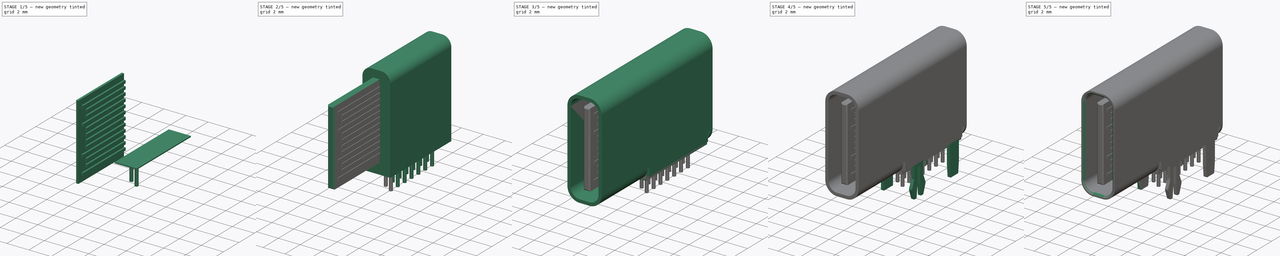
[diagram: build sequence overview — one tinted view per stage of 5, left to right]
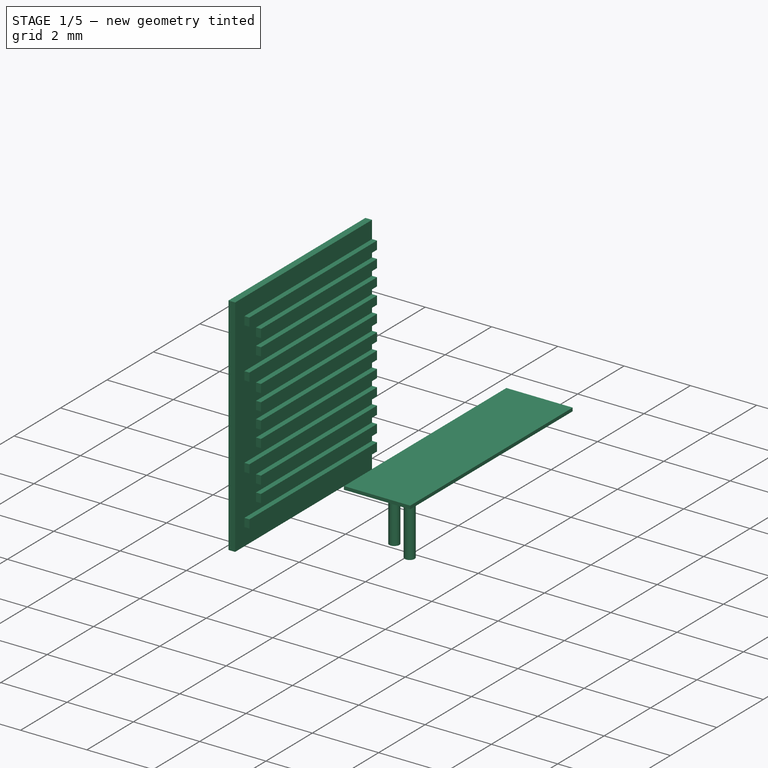
[diagram: stage 1 of 5 — iso view after this stage's code; geometry added in this stage tinted green]
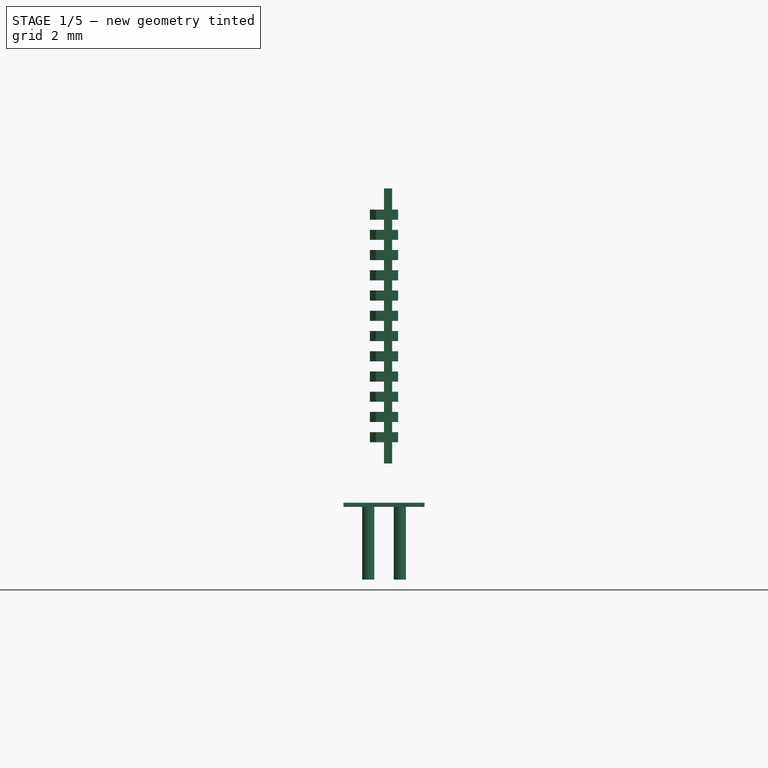
[diagram: stage 1 of 5 — front view after this stage's code; geometry added in this stage tinted green]
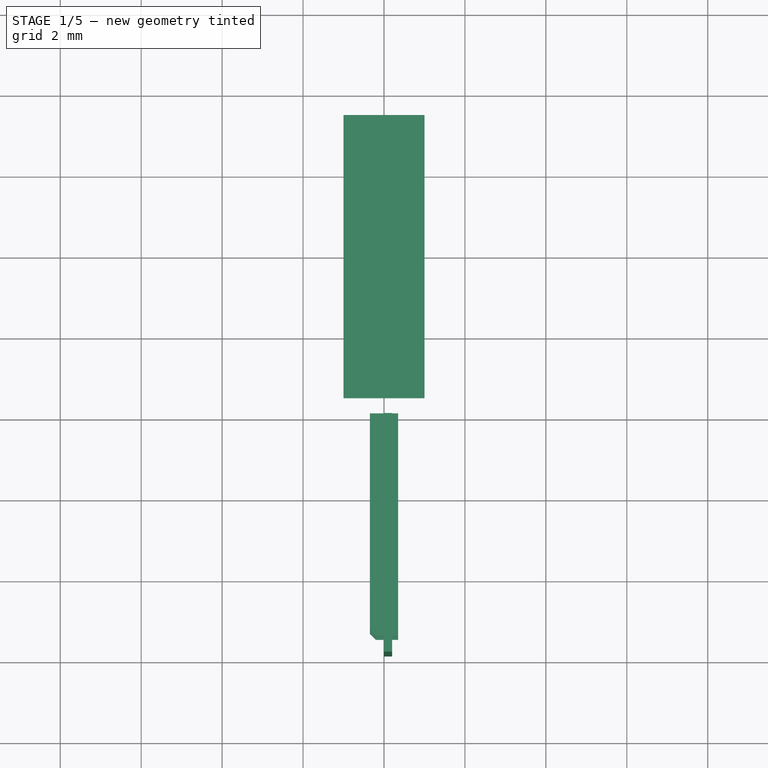
[diagram: stage 1 of 5 — top view after this stage's code; geometry added in this stage tinted green]
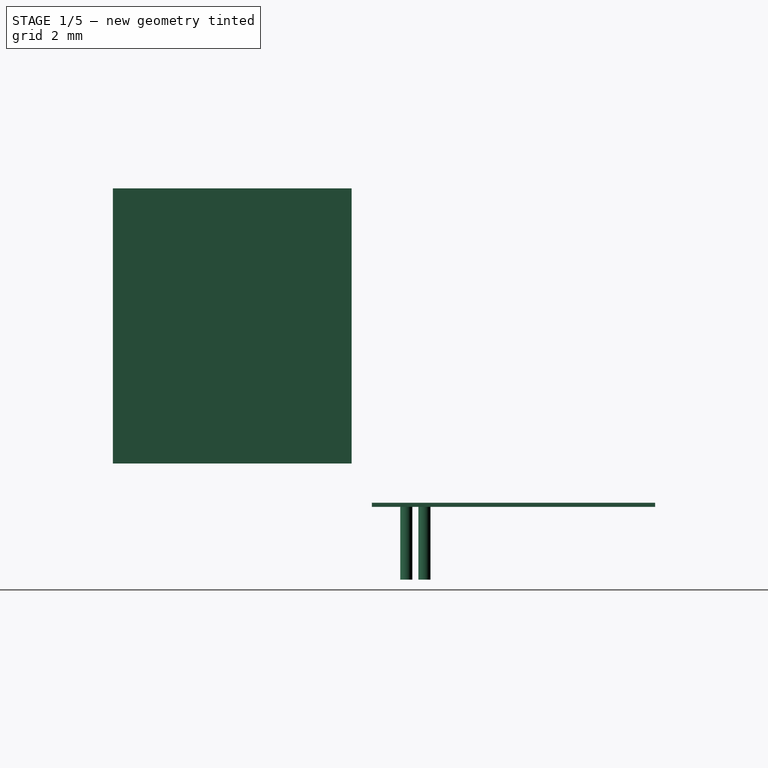
[diagram: stage 1 of 5 — right view after this stage's code; geometry added in this stage tinted green]
FCSTD DOCUMENT  (FreeCAD 0.17R13541 (Git))
Label: KUSBX-SL-CS1N14-B
License: All rights reserved
LicenseURL: http://en.wikipedia.org/wiki/All_rights_reserved
objects: Sketcher::SketchObject×16, PartDesign::Pad×11, PartDesign::Pocket×5, PartDesign::Body×4, PartDesign::Fillet×3, PartDesign::Chamfer×3, PartDesign::LinearPattern×1, App::Part×1
note: 59 computed .brp shape members not serialized (recipe doc carries the construction recipe); baked Part::Feature solids carry a one-line shape summary decoded from their .brp

FEATURE [Sketcher::SketchObject] Sketch014
  MapMode = 5
  Support = -> [XY_Plane004]
  sketch-geometry (5):
    g0: LineSegment StartX=1 StartY=-0.5 StartZ=0 EndX=-1 EndY=-0.5 EndZ=0
    g1: LineSegment StartX=-1 StartY=-0.5 StartZ=0 EndX=-1 EndY=-7.5 EndZ=0
    g2: LineSegment StartX=-1 StartY=-7.5 StartZ=0 EndX=1 EndY=-7.5 EndZ=0
    g3: LineSegment StartX=1 StartY=-7.5 StartZ=0 EndX=1 EndY=-0.5 EndZ=0
    g4: GeomPoint X=0 Y=-4 Z=0
  constraints (13):
    c: Coincident(g0,g1)
    c: Coincident(g1,g2)
    c: Coincident(g2,g3)
    c: Coincident(g3,g0)
    c: Horizontal(g0)
    c: Horizontal(g2)
    c: Vertical(g1)
    c: Vertical(g3)
    c: DistanceX(g0,g0) = 2
    c: DistanceY(g1,g1) = 7
    c: PointOnObject(g4,g-2)
    c: Symmetric(g0,g1,g4)
    c: Distance(g4,g-1) = 4
FEATURE [PartDesign::Pad] Pad008
  Length = 0.1
  Length2 = 100
  Profile = -> Sketch014
  Type = 0
FEATURE [PartDesign::Body] Body001  label="Plastic"
  Group = -> [Sketch010,Pad005,Sketch011,Pad006,Chamfer001,Sketch015,Pad009]
  Origin = -> Origin002
  Tip = -> Pad009
FEATURE [Sketcher::SketchObject] Sketch016
  MapMode = 5
  Placement = pos=(0,0,0) rot=(1,0,0;3.14159rad)
  Support = -> [Pad008]
  expr: Constraints[1] = 0.78000000000000003 / 2
  sketch-geometry (2):
    g0: Circle CenterX=-0.39 CenterY=6.2 CenterZ=0 NormalX=0 NormalY=0 NormalZ=1 AngleXU=0 Radius=0.15
    g1: Circle CenterX=0.39 CenterY=6.65 CenterZ=0 NormalX=0 NormalY=0 NormalZ=1 AngleXU=0 Radius=0.15
  constraints (6):
    c: Radius(g0) = 0.15
    c: Distance(g0,g-2) = 0.39
    c: Equal(g0,g1)
    c: DistanceX(g0,g1) = 0.78
    c: DistanceY(g-1,g1) = 6.65
    c: DistanceY(g0,g1) = 0.45
FEATURE [PartDesign::Pad] Pad010
  BaseFeature = -> Pad008
  Length = 1.8
  Length2 = 100
  Profile = -> Sketch016
  Type = 0
FEATURE [PartDesign::Body] Body003  label="Pins"
  Group = -> [Sketch014,Pad008,Sketch016,Pad010,LinearPattern]
  Origin = -> Origin004
  Tip = -> LinearPattern
FEATURE [Sketcher::SketchObject] Sketch017
  MapMode = 5
  Placement = pos=(0,0,0) rot=(0.57735,0.57735,0.57735;2.0944rad)
  Support = -> [YZ_Plane005]
  sketch-geometry (8):
    g0: LineSegment StartX=-13.9 StartY=7.87 StartZ=0 EndX=-8 EndY=7.87 EndZ=0
    g1: LineSegment StartX=-8 StartY=7.87 StartZ=0 EndX=-8 EndY=1.07 EndZ=0
    g2: LineSegment StartX=-8 StartY=1.07 StartZ=0 EndX=-13.9 EndY=1.07 EndZ=0
    g3: LineSegment StartX=-13.9 StartY=1.07 StartZ=0 EndX=-13.9 EndY=7.87 EndZ=0
    g4: GeomPoint X=0 Y=8.64 Z=0
    g5: GeomPoint X=0 Y=0.3 Z=0
    g6: GeomPoint X=0 Y=4.47 Z=0
    g7: GeomPoint X=-10.95 Y=4.47 Z=0
  constraints (19):
    c: Coincident(g0,g1)
    c: Coincident(g1,g2)
    c: Coincident(g2,g3)
    c: Coincident(g3,g0)
    c: Horizontal(g0)
    c: Horizontal(g2)
    c: Vertical(g1)
    c: Vertical(g3)
    c: DistanceX(g0,g0) = 5.9
    c: DistanceY(g3,g3) = 6.8
    c: PointOnObject(g4,g-2)
    c: DistanceY(g-1,g4) = 8.64
    c: PointOnObject(g5,g-2)
    c: DistanceY(g-1,g5) = 0.3
    c: PointOnObject(g6,g-2)
    c: Symmetric(g4,g5,g6)
    c: Symmetric(g0,g1,g7)
    c: Horizontal(g7,g6)
    c: Distance(g0,g-2) = 8
FEATURE [PartDesign::Pad] Pad011
  Length = 0.2
  Length2 = 100
  Placement = pos=(0,0,0) rot=(0.57735,0.57735,0.57735;2.0944rad)
  Profile = -> Sketch017
  Type = 0
FEATURE [Sketcher::SketchObject] Sketch018
  ExternalGeometry = -> [Pad011]
  MapMode = 5
  Placement = pos=(0.2,0,0) rot=(0.57735,0.57735,0.57735;2.0944rad)
  Support = -> [Pad011]
  sketch-geometry (48):
    g0: LineSegment StartX=-13.5 StartY=7.345 StartZ=0 EndX=-8 EndY=7.345 EndZ=0
    g1: LineSegment StartX=-8 StartY=7.345 StartZ=0 EndX=-8 EndY=7.095 EndZ=0
    g2: LineSegment StartX=-8 StartY=7.095 StartZ=0 EndX=-13.5 EndY=7.095 EndZ=0
    g3: LineSegment StartX=-13.5 StartY=7.095 StartZ=0 EndX=-13.5 EndY=7.345 EndZ=0
    g4: LineSegment StartX=-13 StartY=6.845 StartZ=0 EndX=-8 EndY=6.845 EndZ=0
    g5: LineSegment StartX=-8 StartY=6.845 StartZ=0 EndX=-8 EndY=6.595 EndZ=0
    g6: LineSegment StartX=-8 StartY=6.595 StartZ=0 EndX=-13 EndY=6.595 EndZ=0
    g7: LineSegment StartX=-13 StartY=6.595 StartZ=0 EndX=-13 EndY=6.845 EndZ=0
    g8: LineSegment StartX=-13 StartY=6.345 StartZ=0 EndX=-8 EndY=6.345 EndZ=0
    g9: LineSegment StartX=-8 StartY=6.345 StartZ=0 EndX=-8 EndY=6.095 EndZ=0
    g10: LineSegment StartX=-8 StartY=6.095 StartZ=0 EndX=-13 EndY=6.095 EndZ=0
    g11: LineSegment StartX=-13 StartY=6.095 StartZ=0 EndX=-13 EndY=6.345 EndZ=0
    g12: LineSegment StartX=-13.5 StartY=5.845 StartZ=0 EndX=-8 EndY=5.845 EndZ=0
    g13: LineSegment StartX=-8 StartY=5.845 StartZ=0 EndX=-8 EndY=5.595 EndZ=0
    g14: LineSegment StartX=-8 StartY=5.595 StartZ=0 EndX=-13.5 EndY=5.595 EndZ=0
    g15: LineSegment StartX=-13.5 StartY=5.595 StartZ=0 EndX=-13.5 EndY=5.845 EndZ=0
    g16: LineSegment StartX=-13 StartY=5.345 StartZ=0 EndX=-8 EndY=5.345 EndZ=0
    g17: LineSegment StartX=-8 StartY=5.345 StartZ=0 EndX=-8 EndY=5.095 EndZ=0
    g18: LineSegment StartX=-8 StartY=5.095 StartZ=0 EndX=-13 EndY=5.095 EndZ=0
    g19: LineSegment StartX=-13 StartY=5.095 StartZ=0 EndX=-13 EndY=5.345 EndZ=0
    g20: LineSegment StartX=-13 StartY=4.845 StartZ=0 EndX=-8 EndY=4.845 EndZ=0
    g21: LineSegment StartX=-8 StartY=4.845 StartZ=0 EndX=-8 EndY=4.595 EndZ=0
    g22: LineSegment StartX=-8 StartY=4.595 StartZ=0 EndX=-13 EndY=4.595 EndZ=0
    g23: LineSegment StartX=-13 StartY=4.595 StartZ=0 EndX=-13 EndY=4.845 EndZ=0
    g24: LineSegment StartX=-13 StartY=4.345 StartZ=0 EndX=-8 EndY=4.345 EndZ=0
    g25: LineSegment StartX=-8 StartY=4.345 StartZ=0 EndX=-8 EndY=4.095 EndZ=0
    g26: LineSegment StartX=-8 StartY=4.095 StartZ=0 EndX=-13 EndY=4.095 EndZ=0
    g27: LineSegment StartX=-13 StartY=4.095 StartZ=0 EndX=-13 EndY=4.345 EndZ=0
    g28: LineSegment StartX=-13 StartY=3.845 StartZ=0 EndX=-8 EndY=3.845 EndZ=0
    g29: LineSegment StartX=-8 StartY=3.845 StartZ=0 EndX=-8 EndY=3.595 EndZ=0
    g30: LineSegment StartX=-8 StartY=3.595 StartZ=0 EndX=-13 EndY=3.595 EndZ=0
    g31: LineSegment StartX=-13 StartY=3.595 StartZ=0 EndX=-13 EndY=3.845 EndZ=0
    g32: LineSegment StartX=-13.5 StartY=3.345 StartZ=0 EndX=-8 EndY=3.345 EndZ=0
    g33: LineSegment StartX=-8 StartY=3.345 StartZ=0 EndX=-8 EndY=3.095 EndZ=0
    g34: LineSegment StartX=-8 StartY=3.095 StartZ=0 EndX=-13.5 EndY=3.095 EndZ=0
    g35: LineSegment StartX=-13.5 StartY=3.095 StartZ=0 EndX=-13.5 EndY=3.345 EndZ=0
    g36: LineSegment StartX=-13 StartY=2.845 StartZ=0 EndX=-8 EndY=2.845 EndZ=0
    g37: LineSegment StartX=-8 StartY=2.845 StartZ=0 EndX=-8 EndY=2.595 EndZ=0
    g38: LineSegment StartX=-8 StartY=2.595 StartZ=0 EndX=-13 EndY=2.595 EndZ=0
    g39: LineSegment StartX=-13 StartY=2.595 StartZ=0 EndX=-13 EndY=2.845 EndZ=0
    g40: LineSegment StartX=-13 StartY=2.345 StartZ=0 EndX=-8 EndY=2.345 EndZ=0
    g41: LineSegment StartX=-8 StartY=2.345 StartZ=0 EndX=-8 EndY=2.095 EndZ=0
    g42: LineSegment StartX=-8 StartY=2.095 StartZ=0 EndX=-13 EndY=2.095 EndZ=0
    g43: LineSegment StartX=-13 StartY=2.095 StartZ=0 EndX=-13 EndY=2.345 EndZ=0
    g44: LineSegment StartX=-13.5 StartY=1.845 StartZ=0 EndX=-8 EndY=1.845 EndZ=0
    g45: LineSegment StartX=-8 StartY=1.845 StartZ=0 EndX=-8 EndY=1.595 EndZ=0
    g46: LineSegment StartX=-8 StartY=1.595 StartZ=0 EndX=-13.5 EndY=1.595 EndZ=0
    g47: LineSegment StartX=-13.5 StartY=1.595 StartZ=0 EndX=-13.5 EndY=1.845 EndZ=0
  constraints (144):
    c: Coincident(g0,g1)
    c: Coincident(g1,g2)
    c: Coincident(g2,g3)
    c: Coincident(g3,g0)
    c: Horizontal(g0)
    c: Horizontal(g2)
    c: Vertical(g1)
    c: Vertical(g3)
    c: PointOnObject(g1,g-3)
    c: Coincident(g4,g5)
    c: Coincident(g5,g6)
    c: Coincident(g6,g7)
    c: Coincident(g7,g4)
    c: Horizontal(g4)
    c: Horizontal(g6)
    c: Vertical(g5)
    c: Vertical(g7)
    c: PointOnObject(g5,g-3)
    c: Coincident(g8,g9)
    c: Coincident(g9,g10)
    c: Coincident(g10,g11)
    c: Coincident(g11,g8)
    c: Horizontal(g8)
    c: Horizontal(g10)
    c: Vertical(g9)
    c: Vertical(g11)
    c: PointOnObject(g9,g-3)
    c: Coincident(g12,g13)
    c: Coincident(g13,g14)
    c: Coincident(g14,g15)
    c: Coincident(g15,g12)
    c: Horizontal(g12)
    c: Horizontal(g14)
    c: Vertical(g13)
    c: Vertical(g15)
    c: PointOnObject(g13,g-3)
    c: Coincident(g16,g17)
    c: Coincident(g17,g18)
    c: Coincident(g18,g19)
    c: Coincident(g19,g16)
    c: Horizontal(g16)
    c: Horizontal(g18)
    c: Vertical(g17)
    c: Vertical(g19)
    c: PointOnObject(g17,g-3)
    c: Coincident(g20,g21)
    c: Coincident(g21,g22)
    c: Coincident(g22,g23)
    c: Coincident(g23,g20)
    c: Horizontal(g20)
    c: Horizontal(g22)
    c: Vertical(g21)
    c: Vertical(g23)
    c: PointOnObject(g21,g-3)
    c: Coincident(g24,g25)
    c: Coincident(g25,g26)
    c: Coincident(g26,g27)
    c: Coincident(g27,g24)
    c: Horizontal(g24)
    c: Horizontal(g26)
    c: Vertical(g25)
    c: Vertical(g27)
    c: PointOnObject(g25,g-3)
    c: Coincident(g28,g29)
    c: Coincident(g29,g30)
    c: Coincident(g30,g31)
    c: Coincident(g31,g28)
    c: Horizontal(g28)
    c: Horizontal(g30)
    c: Vertical(g29)
    c: Vertical(g31)
    c: PointOnObject(g29,g-3)
    c: Coincident(g32,g33)
    c: Coincident(g33,g34)
    c: Coincident(g34,g35)
    c: Coincident(g35,g32)
    c: Horizontal(g32)
    c: Horizontal(g34)
    c: Vertical(g33)
    c: Vertical(g35)
    c: PointOnObject(g33,g-3)
    c: Coincident(g36,g37)
    c: Coincident(g37,g38)
    c: Coincident(g38,g39)
    c: Coincident(g39,g36)
    c: Horizontal(g36)
    c: Horizontal(g38)
    c: Vertical(g37)
    c: Vertical(g39)
    c: PointOnObject(g37,g-3)
    c: Coincident(g40,g41)
    c: Coincident(g41,g42)
    c: Coincident(g42,g43)
    c: Coincident(g43,g40)
    c: Horizontal(g40)
    c: Horizontal(g42)
    c: Vertical(g41)
    c: Vertical(g43)
    c: PointOnObject(g41,g-3)
    c: Coincident(g44,g45)
    c: Coincident(g45,g46)
    c: Coincident(g46,g47)
    c: Coincident(g47,g44)
    c: Horizontal(g44)
    c: Horizontal(g46)
    c: Vertical(g45)
    c: Vertical(g47)
    c: PointOnObject(g45,g-3)
    c: Equal(g3,g7)
    c: Equal(g7,g11)
    c: Equal(g11,g15)
    c: Equal(g15,g19)
    c: Equal(g19,g23)
    c: Equal(g23,g27)
    c: Equal(g27,g31)
    c: Equal(g31,g35)
    c: Equal(g35,g39)
    c: Equal(g39,g43)
    c: Equal(g43,g47)
    c: Vertical(g0,g12)
    c: Vertical(g12,g32)
    c: Vertical(g32,g44)
    c: Vertical(g4,g8)
    c: Vertical(g8,g16)
    c: Vertical(g16,g20)
    c: Vertical(g20,g24)
    c: Vertical(g24,g28)
    c: Vertical(g28,g36)
    c: Vertical(g36,g40)
    c: DistanceY(g47,g47) = 0.25
    c: DistanceY(g4,g0) = 0.5
    c: DistanceY(g8,g4) = 0.5
    c: DistanceY(g12,g8) = 0.5
    c: DistanceY(g16,g12) = 0.5
    c: DistanceY(g20,g16) = 0.5
    c: DistanceY(g24,g20) = 0.5
    c: DistanceY(g28,g24) = 0.5
    c: DistanceY(g32,g28) = 0.5
    c: DistanceY(g36,g32) = 0.5
    c: DistanceY(g40,g36) = 0.5
    c: DistanceY(g44,g40) = 0.5
    c: DistanceX(g44,g42) = 0.5
    c: DistanceY(g0,g-3) = 0.525
    c: DistanceX(g46,g46) = 5.5
FEATURE [PartDesign::Pad] Pad012
  BaseFeature = -> Pad011
  Length = 0.15
  Length2 = 0.55
  Placement = pos=(0,0,0) rot=(0.57735,0.57735,0.57735;2.0944rad)
  Profile = -> Sketch018
  Type = 4
FEATURE [PartDesign::Chamfer] Chamfer002
  Base = -> Pad012 [Edge215,Edge207,Edge198,Edge189,Edge180,Edge171,Edge162,Edge153,Edge144,Edge135,Edge126,Edge117]
  BaseFeature = -> Pad012
  Placement = pos=(0,0,0) rot=(0.57735,0.57735,0.57735;2.0944rad)
  Size = 0.15
FEATURE [PartDesign::Body] Body004  label="Contacts"
  Group = -> [Sketch017,Pad011,Sketch018,Pad012,Chamfer002]
  Origin = -> Origin005
  Tip = -> Chamfer002
FEATURE [App::Part] Part  label="KUSBX-SL-CS1N14-B"
  Group = -> [Body,Body001,Body003,Body004]
  License = CC BY 3.0
  LicenseURL = http://creativecommons.org/licenses/by/3.0/
  Origin = -> Origin
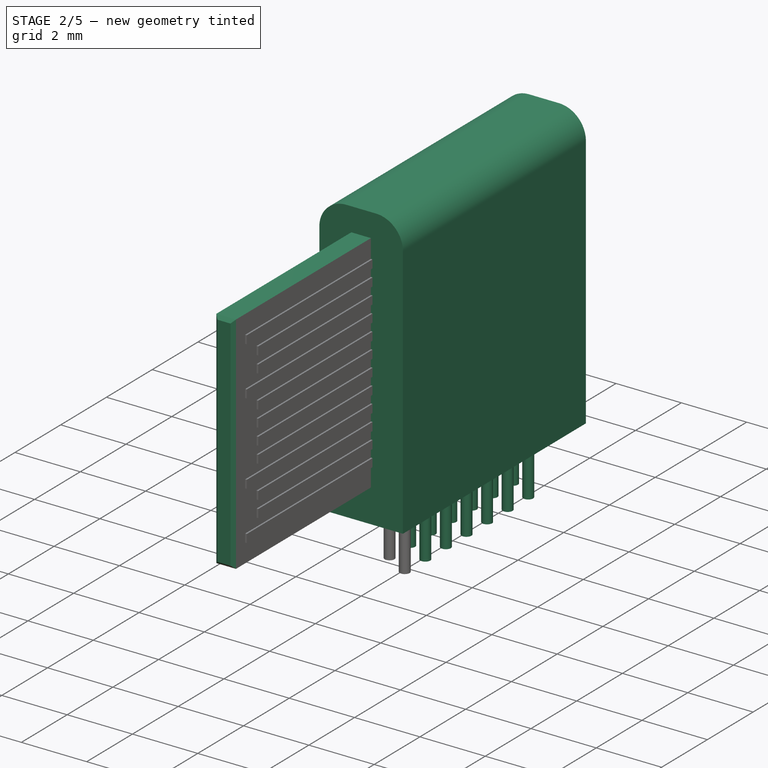
[diagram: stage 2 of 5 — iso view after this stage's code; geometry added in this stage tinted green]
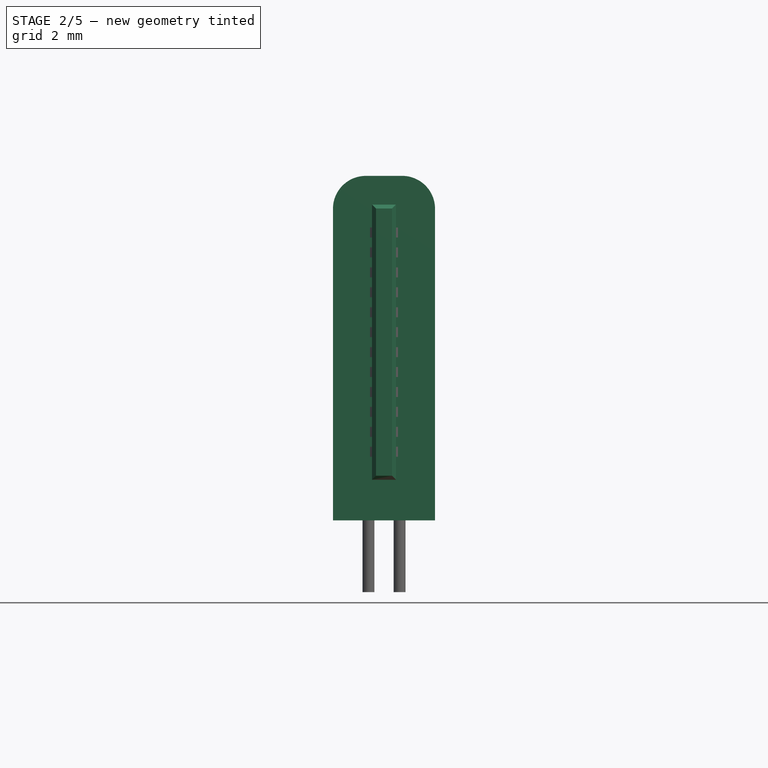
[diagram: stage 2 of 5 — front view after this stage's code; geometry added in this stage tinted green]
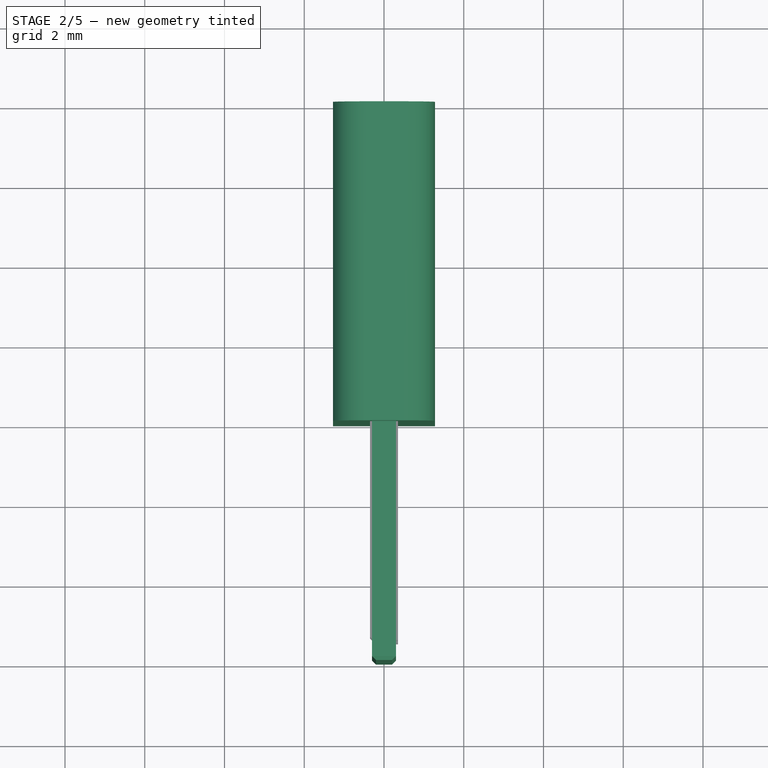
[diagram: stage 2 of 5 — top view after this stage's code; geometry added in this stage tinted green]
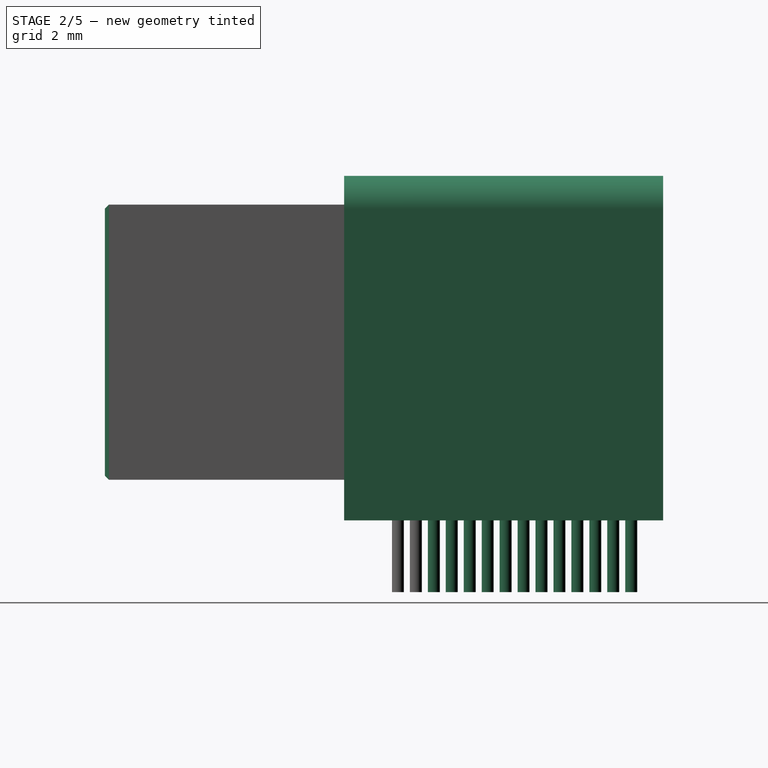
[diagram: stage 2 of 5 — right view after this stage's code; geometry added in this stage tinted green]
FEATURE [Sketcher::SketchObject] Sketch010
  MapMode = 5
  Placement = pos=(0,0,0) rot=(1,0,0;1.5708rad)
  Support = -> [XZ_Plane002]
  expr: Constraints[12] = 8.3399999999999999 + 0.29999999999999999
  expr: Constraints[11] = (8.3399999999999999 - 6.6900000000000004) / 2
  sketch-geometry (6):
    g0: LineSegment StartX=-0.455 StartY=8.64 StartZ=0 EndX=0.455 EndY=8.64 EndZ=0
    g1: LineSegment StartX=1.28 StartY=7.815 StartZ=0 EndX=1.28 EndY=0 EndZ=0
    g2: LineSegment StartX=1.28 StartY=0 StartZ=0 EndX=-1.28 EndY=0 EndZ=0
    g3: LineSegment StartX=-1.28 StartY=0 StartZ=0 EndX=-1.28 EndY=7.815 EndZ=0
    g4: ArcOfCircle CenterX=-0.455 CenterY=7.815 CenterZ=0 NormalX=0 NormalY=0 NormalZ=1 AngleXU=0 Radius=0.825 StartAngle=1.5708 EndAngle=3.14159
    g5: ArcOfCircle CenterX=0.455 CenterY=7.815 CenterZ=0 NormalX=0 NormalY=0 NormalZ=1 AngleXU=0 Radius=0.825 StartAngle=0 EndAngle=1.5708
  constraints (15):
    c: Coincident(g1,g2)
    c: Coincident(g2,g3)
    c: Horizontal(g0)
    c: Horizontal(g2)
    c: Vertical(g1)
    c: Vertical(g3)
    c: Tangent(g0,g4) = 1.5708
    c: Tangent(g3,g4) = 1.5708
    c: Tangent(g0,g5) = 1.5708
    c: Tangent(g1,g5) = 1.5708
    c: Equal(g4,g5)
    c: Radius(g5) = 0.825
    c: DistanceY(g1,g0) = 8.64
    c: Symmetric(g2,g1,g-1)
    c: DistanceX(g2,g2) = 2.56
FEATURE [PartDesign::Pad] Pad005
  Length = 8
  Length2 = 100
  Placement = pos=(0,0,0) rot=(1,0,0;1.5708rad)
  Profile = -> Sketch010
  Type = 0
FEATURE [Sketcher::SketchObject] Sketch011
  ExternalGeometry = -> [Pad005]
  MapMode = 5
  Placement = pos=(0,-8,0) rot=(1,0,0;1.5708rad)
  Support = -> [Pad005]
  sketch-geometry (7):
    g0: LineSegment StartX=-0.3 StartY=7.92 StartZ=0 EndX=0.3 EndY=7.92 EndZ=0
    g1: LineSegment StartX=0.3 StartY=7.92 StartZ=0 EndX=0.3 EndY=1.02 EndZ=0
    g2: LineSegment StartX=0.3 StartY=1.02 StartZ=0 EndX=-0.3 EndY=1.02 EndZ=0
    g3: LineSegment StartX=-0.3 StartY=1.02 StartZ=0 EndX=-0.3 EndY=7.92 EndZ=0
    g4: GeomPoint X=0 Y=0.3 Z=0
    g5: GeomPoint X=0 Y=8.64 Z=0
    g6: GeomPoint X=0 Y=4.47 Z=0
  constraints (17):
    c: Coincident(g0,g1)
    c: Coincident(g1,g2)
    c: Coincident(g2,g3)
    c: Coincident(g3,g0)
    c: Horizontal(g0)
    c: Horizontal(g2)
    c: Vertical(g1)
    c: Vertical(g3)
    c: DistanceX(g0,g0) = 0.6
    c: PointOnObject(g4,g-2)
    c: DistanceY(g-1,g4) = 0.3
    c: PointOnObject(g5,g-2)
    c: PointOnObject(g5,g-3)
    c: PointOnObject(g6,g-2)
    c: Symmetric(g0,g2,g6)
    c: Symmetric(g5,g4,g6)
    c: DistanceY(g1,g1) = 6.9
FEATURE [PartDesign::Pad] Pad006
  BaseFeature = -> Pad005
  Length = 6
  Length2 = 100
  Placement = pos=(0,0,0) rot=(1,0,0;1.5708rad)
  Profile = -> Sketch011
  Type = 0
FEATURE [PartDesign::Body] Body
  Group = -> [Sketch,Pad,Sketch001,Pad001,Sketch002,Pocket,Sketch004,Pad003,Sketch005,Pad004,Sketch006,Pocket001,Sketch007,Pocket002,Sketch008,Pocket003,Sketch009,Pocket004,Fillet,Fillet001,Fillet002,Chamfer]
  Origin = -> Origin001
  Tip = -> Chamfer
FEATURE [PartDesign::Chamfer] Chamfer001
  Base = -> Pad006 [Face13]
  BaseFeature = -> Pad006
  Placement = pos=(0,0,0) rot=(1,0,0;1.5708rad)
  Size = 0.1
FEATURE [PartDesign::LinearPattern] LinearPattern
  BaseFeature = -> Pad010
  Direction = -> Y_Axis004
  Length = 5.4
  Occurrences = 7
  Originals = -> [Pad010]
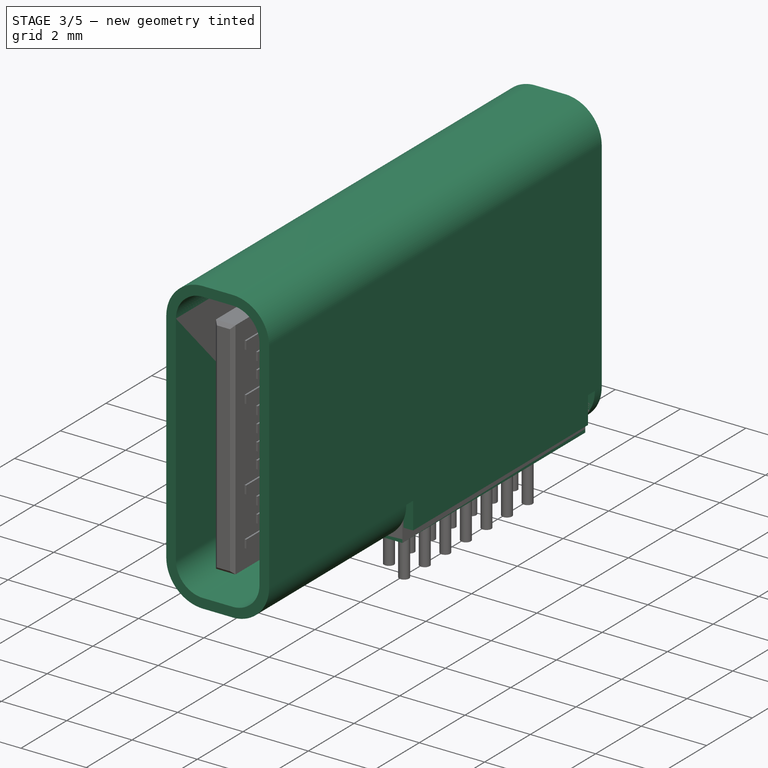
[diagram: stage 3 of 5 — iso view after this stage's code; geometry added in this stage tinted green]
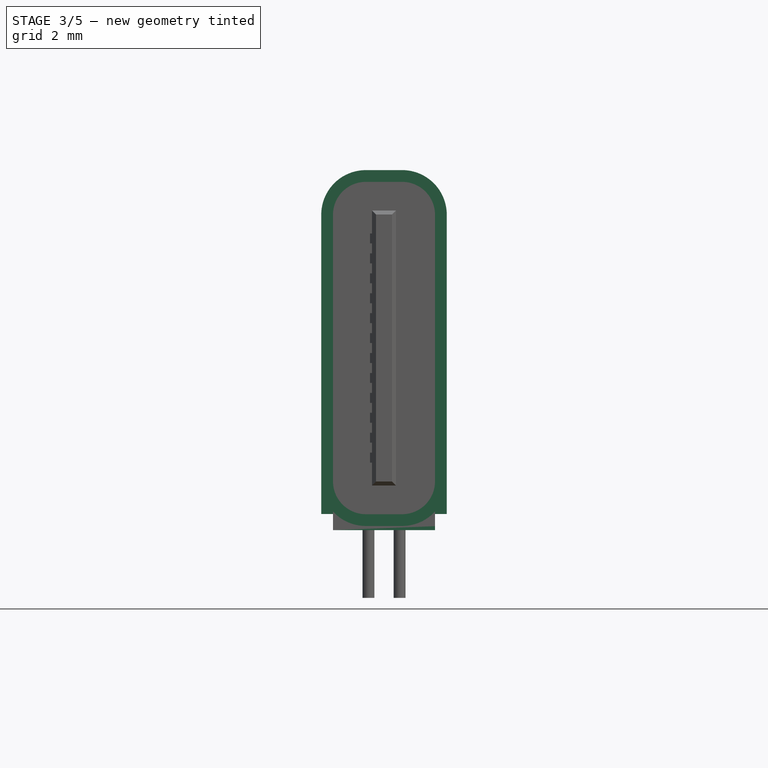
[diagram: stage 3 of 5 — front view after this stage's code; geometry added in this stage tinted green]
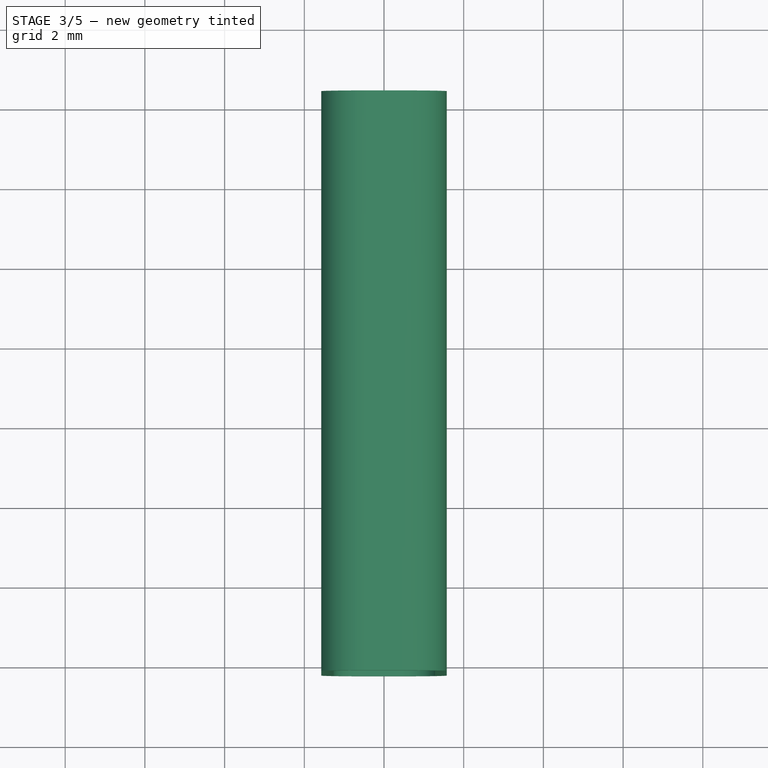
[diagram: stage 3 of 5 — top view after this stage's code; geometry added in this stage tinted green]
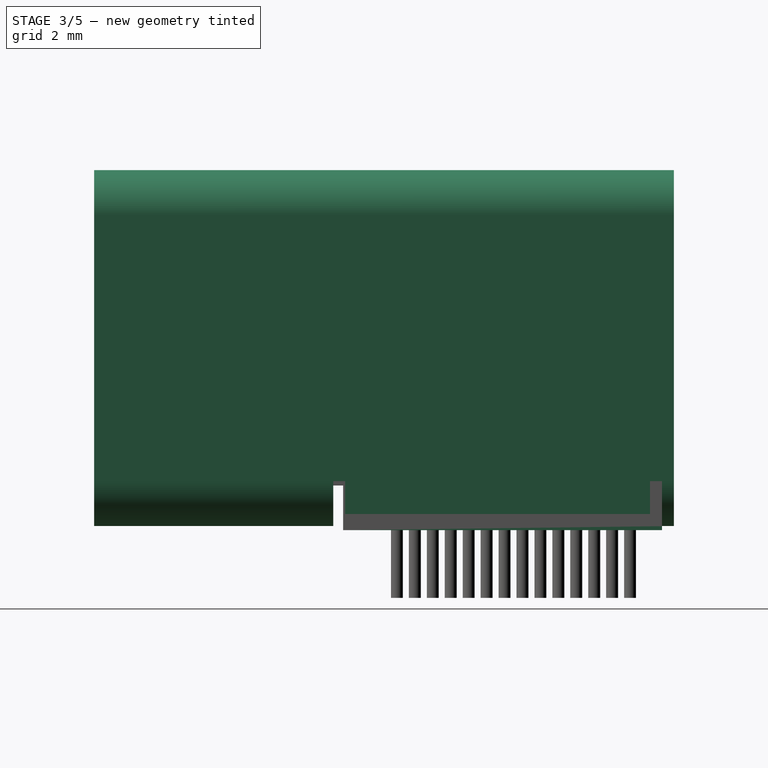
[diagram: stage 3 of 5 — right view after this stage's code; geometry added in this stage tinted green]
FEATURE [Sketcher::SketchObject] Sketch
  MapMode = 5
  Placement = pos=(0,0,0) rot=(1,0,0;1.5708rad)
  Support = -> [XZ_Plane001]
  expr: Constraints[35] = (8.3399999999999999 - 6.6900000000000004) / 2 + 0.29999999999999999
  expr: Constraints[15] = (8.3399999999999999 - 6.6900000000000004) / 2
  sketch-geometry (16):
    g0: LineSegment StartX=-0.455 StartY=8.64 StartZ=0 EndX=0.455 EndY=8.64 EndZ=0
    g1: LineSegment StartX=1.28 StartY=7.815 StartZ=0 EndX=1.28 EndY=1.125 EndZ=0
    g2: LineSegment StartX=0.455 StartY=0.3 StartZ=0 EndX=-0.455 EndY=0.3 EndZ=0
    g3: LineSegment StartX=-1.28 StartY=1.125 StartZ=0 EndX=-1.28 EndY=7.815 EndZ=0
    g4: ArcOfCircle CenterX=0.455 CenterY=7.815 CenterZ=0 NormalX=0 NormalY=0 NormalZ=1 AngleXU=0 Radius=0.825 StartAngle=0 EndAngle=1.5708
    g5: ArcOfCircle CenterX=-0.455 CenterY=7.815 CenterZ=0 NormalX=0 NormalY=0 NormalZ=1 AngleXU=0 Radius=0.825 StartAngle=1.5708 EndAngle=3.14159
    g6: ArcOfCircle CenterX=-0.455 CenterY=1.125 CenterZ=0 NormalX=0 NormalY=0 NormalZ=1 AngleXU=0 Radius=0.825 StartAngle=3.14159 EndAngle=4.71239
    g7: ArcOfCircle CenterX=0.455 CenterY=1.125 CenterZ=0 NormalX=0 NormalY=0 NormalZ=1 AngleXU=0 Radius=0.825 StartAngle=4.71239 EndAngle=6.28319
    g8: LineSegment StartX=-0.455 StartY=8.935 StartZ=0 EndX=0.455 EndY=8.935 EndZ=0
    g9: LineSegment StartX=1.575 StartY=7.815 StartZ=0 EndX=1.575 EndY=1.125 EndZ=0
    g10: LineSegment StartX=0.455 StartY=0.005 StartZ=0 EndX=-0.455 EndY=0.005 EndZ=0
    g11: LineSegment StartX=-1.575 StartY=1.125 StartZ=0 EndX=-1.575 EndY=7.815 EndZ=0
    g12: ArcOfCircle CenterX=-0.455 CenterY=7.815 CenterZ=0 NormalX=0 NormalY=0 NormalZ=1 AngleXU=0 Radius=1.12 StartAngle=1.5708 EndAngle=3.14159
    g13: ArcOfCircle CenterX=0.455 CenterY=7.815 CenterZ=0 NormalX=0 NormalY=0 NormalZ=1 AngleXU=0 Radius=1.12 StartAngle=0 EndAngle=1.5708
    g14: ArcOfCircle CenterX=0.455 CenterY=1.125 CenterZ=0 NormalX=0 NormalY=0 NormalZ=1 AngleXU=0 Radius=1.12 StartAngle=4.71239 EndAngle=6.28319
    g15: ArcOfCircle CenterX=-0.455 CenterY=1.125 CenterZ=0 NormalX=0 NormalY=0 NormalZ=1 AngleXU=0 Radius=1.12 StartAngle=3.14159 EndAngle=4.71239
  constraints (39):
    c: Horizontal(g0)
    c: Horizontal(g2)
    c: Vertical(g1)
    c: Vertical(g3)
    c: Tangent(g0,g4) = 1.5708
    c: Tangent(g1,g4) = 1.5708
    c: Tangent(g0,g5) = 1.5708
    c: Tangent(g3,g5) = 1.5708
    c: Tangent(g2,g6) = 1.5708
    c: Tangent(g3,g6) = 1.5708
    c: Tangent(g1,g7) = 1.5708
    c: Tangent(g2,g7) = 1.5708
    c: Equal(g4,g5)
    c: Equal(g5,g6)
    c: Equal(g6,g7)
    c: Radius(g4) = 0.825
    c: Distance(g0,g2) = 8.34
    c: Distance(g3,g1) = 2.56
    c: Symmetric(g2,g2,g-2)
    c: Distance(g2,g-1) = 0.3
    c: Horizontal(g8)
    c: Horizontal(g10)
    c: Vertical(g9)
    c: Vertical(g11)
    c: Tangent(g8,g12) = 1.5708
    c: Tangent(g11,g12) = 1.5708
    c: Tangent(g8,g13) = 1.5708
    c: Tangent(g9,g13) = 1.5708
    c: Tangent(g9,g14) = 1.5708
    c: Tangent(g10,g14) = 1.5708
    c: Tangent(g10,g15) = 1.5708
    c: Tangent(g11,g15) = 1.5708
    c: Equal(g13,g12)
    c: Equal(g12,g15)
    c: Equal(g15,g14)
    c: Radius(g13) = 1.125
    c: Coincident(g13,g4)
    c: Coincident(g5,g12)
    c: Coincident(g14,g7)
FEATURE [PartDesign::Pad] Pad
  Length = 14.25
  Length2 = 100
  Placement = pos=(0,0,0) rot=(1,0,0;1.5708rad)
  Profile = -> Sketch
  Type = 0
  expr: Length = 14.550000000000001 - 0.29999999999999999
FEATURE [Sketcher::SketchObject] Sketch001
  ExternalGeometry = -> [Pad]
  MapMode = 5
  Placement = pos=(0,0,0) rot=(-1,0,0;1.5708rad)
  Support = -> [Pad]
  sketch-geometry (8):
    g0: LineSegment StartX=0.455 StartY=-8.935 StartZ=0 EndX=-0.455 EndY=-8.935 EndZ=0
    g1: LineSegment StartX=-1.575 StartY=-7.815 StartZ=0 EndX=-1.575 EndY=-1.125 EndZ=0
    g2: LineSegment StartX=-0.455 StartY=-0.005 StartZ=0 EndX=0.455 EndY=-0.005 EndZ=0
    g3: LineSegment StartX=1.575 StartY=-1.125 StartZ=0 EndX=1.575 EndY=-7.815 EndZ=0
    g4: ArcOfCircle CenterX=0.455 CenterY=-7.815 CenterZ=0 NormalX=0 NormalY=0 NormalZ=1 AngleXU=0 Radius=1.12 StartAngle=4.71239 EndAngle=6.28319
    g5: ArcOfCircle CenterX=-0.455 CenterY=-7.815 CenterZ=0 NormalX=0 NormalY=0 NormalZ=1 AngleXU=0 Radius=1.12 StartAngle=3.14159 EndAngle=4.71239
    g6: ArcOfCircle CenterX=0.455 CenterY=-1.125 CenterZ=0 NormalX=0 NormalY=0 NormalZ=1 AngleXU=0 Radius=1.12 StartAngle=0 EndAngle=1.5708
    g7: ArcOfCircle CenterX=-0.455 CenterY=-1.125 CenterZ=0 NormalX=0 NormalY=0 NormalZ=1 AngleXU=0 Radius=1.12 StartAngle=1.5708 EndAngle=3.14159
  constraints (19):
    c: Horizontal(g0)
    c: Horizontal(g2)
    c: Vertical(g1)
    c: Vertical(g3)
    c: Tangent(g0,g4) = 1.5708
    c: Tangent(g3,g4) = 1.5708
    c: Tangent(g0,g5) = 1.5708
    c: Tangent(g1,g5) = 1.5708
    c: Tangent(g2,g6) = 1.5708
    c: Tangent(g3,g6) = 1.5708
    c: Tangent(g1,g7) = 1.5708
    c: Tangent(g2,g7) = 1.5708
    c: Equal(g5,g4)
    c: Equal(g4,g6)
    c: Equal(g6,g7)
    c: Equal(g-10,g5)
    c: Coincident(g5,g-10)
    c: Coincident(g-9,g4)
    c: Coincident(g-7,g7)
FEATURE [PartDesign::Pad] Pad001
  BaseFeature = -> Pad
  Length = 0.3
  Length2 = 100
  Placement = pos=(0,0,0) rot=(1,0,0;1.5708rad)
  Profile = -> Sketch001
  Type = 0
FEATURE [Sketcher::SketchObject] Sketch002
  ExternalGeometry = -> [Pad001]
  MapMode = 5
  Placement = pos=(0,0,0.005) rot=(1,0,0;3.14159rad)
  Support = -> [Pad001]
  sketch-geometry (4):
    g0: LineSegment StartX=1.575 StartY=0 StartZ=0 EndX=-1.575 EndY=0 EndZ=0
    g1: LineSegment StartX=-1.575 StartY=0 StartZ=0 EndX=-1.575 EndY=8.25 EndZ=0
    g2: LineSegment StartX=-1.575 StartY=8.25 StartZ=0 EndX=1.575 EndY=8.25 EndZ=0
    g3: LineSegment StartX=1.575 StartY=8.25 StartZ=0 EndX=1.575 EndY=0 EndZ=0
  constraints (11):
    c: Coincident(g0,g1)
    c: Coincident(g1,g2)
    c: Coincident(g2,g3)
    c: Coincident(g3,g0)
    c: Horizontal(g0)
    c: Horizontal(g2)
    c: Vertical(g1)
    c: Vertical(g3)
    c: Coincident(g0,g-4)
    c: PointOnObject(g1,g-3)
    c: Distance(g-3,g2) = 6
FEATURE [PartDesign::Pocket] Pocket
  BaseFeature = -> Pad001
  Length = 1.125
  Length2 = 100
  Placement = pos=(0,0,0) rot=(1,0,0;1.5708rad)
  Profile = -> Sketch002
  Type = 0
  expr: Length = (8.3399999999999999 - 6.6900000000000004) / 2 + 0.29999999999999999
FEATURE [Sketcher::SketchObject] Sketch004
  ExternalGeometry = -> [Pocket]
  MapMode = 5
  Placement = pos=(0,0,1.13) rot=(1,0,0;3.14159rad)
  Support = -> [Pocket]
  sketch-geometry (8):
    g0: LineSegment StartX=1.575 StartY=0.3 StartZ=0 EndX=1.28 EndY=0.3 EndZ=0
    g1: LineSegment StartX=1.28 StartY=0.3 StartZ=0 EndX=1.28 EndY=7.95 EndZ=0
    g2: LineSegment StartX=1.28 StartY=7.95 StartZ=0 EndX=1.575 EndY=7.95 EndZ=0
    g3: LineSegment StartX=1.575 StartY=7.95 StartZ=0 EndX=1.575 EndY=0.3 EndZ=0
    g4: LineSegment StartX=-1.28 StartY=0.3 StartZ=0 EndX=-1.575 EndY=0.3 EndZ=0
    g5: LineSegment StartX=-1.575 StartY=0.3 StartZ=0 EndX=-1.575 EndY=7.95 EndZ=0
    g6: LineSegment StartX=-1.575 StartY=7.95 StartZ=0 EndX=-1.28 EndY=7.95 EndZ=0
    g7: LineSegment StartX=-1.28 StartY=7.95 StartZ=0 EndX=-1.28 EndY=0.3 EndZ=0
  constraints (24):
    c: Coincident(g0,g1)
    c: Coincident(g1,g2)
    c: Coincident(g2,g3)
    c: Coincident(g3,g0)
    c: Horizontal(g0)
    c: Horizontal(g2)
    c: Vertical(g1)
    c: Vertical(g3)
    c: PointOnObject(g0,g-3)
    c: PointOnObject(g1,g-4)
    c: Coincident(g4,g5)
    c: Coincident(g5,g6)
    c: Coincident(g6,g7)
    c: Coincident(g7,g4)
    c: Horizontal(g4)
    c: Horizontal(g6)
    c: Vertical(g5)
    c: Vertical(g7)
    c: PointOnObject(g4,g-5)
    c: PointOnObject(g5,g-6)
    c: DistanceY(g-7,g0) = 0.3
    c: DistanceY(g-5,g4) = 0.3
    c: DistanceY(g5,g-6) = 0.3
    c: DistanceY(g2,g-3) = 0.3
FEATURE [PartDesign::Pad] Pad003
  BaseFeature = -> Pocket
  Length = 0.825
  Length2 = 100
  Placement = pos=(0,0,0) rot=(1,0,0;1.5708rad)
  Profile = -> Sketch004
  Type = 0
  expr: Length = (8.3399999999999999 - 6.6900000000000004) / 2
FEATURE [Sketcher::SketchObject] Sketch015
  ExternalGeometry = -> [Chamfer001]
  MapMode = 5
  Placement = pos=(0,0,0) rot=(1,0,0;3.14159rad)
  Support = -> [Chamfer001]
  sketch-geometry (4):
    g0: LineSegment StartX=-1.28 StartY=8 StartZ=0 EndX=1.28 EndY=8 EndZ=0
    g1: LineSegment StartX=1.28 StartY=8 StartZ=0 EndX=1.28 EndY=0 EndZ=0
    g2: LineSegment StartX=1.28 StartY=0 StartZ=0 EndX=-1.28 EndY=0 EndZ=0
    g3: LineSegment StartX=-1.28 StartY=0 StartZ=0 EndX=-1.28 EndY=8 EndZ=0
  constraints (10):
    c: Coincident(g0,g1)
    c: Coincident(g1,g2)
    c: Coincident(g2,g3)
    c: Coincident(g3,g0)
    c: Horizontal(g0)
    c: Horizontal(g2)
    c: Vertical(g1)
    c: Vertical(g3)
    c: Coincident(g0,g-3)
    c: Coincident(g1,g-4)
FEATURE [PartDesign::Pad] Pad009
  BaseFeature = -> Chamfer001
  Length = 0.1
  Length2 = 100
  Placement = pos=(0,0,0) rot=(1,0,0;1.5708rad)
  Profile = -> Sketch015
  Type = 0
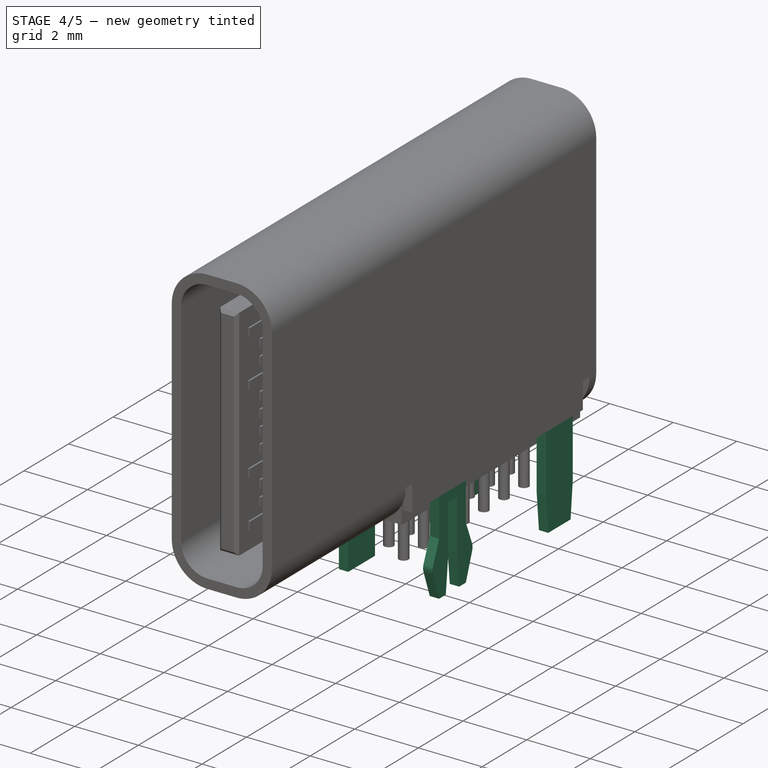
[diagram: stage 4 of 5 — iso view after this stage's code; geometry added in this stage tinted green]
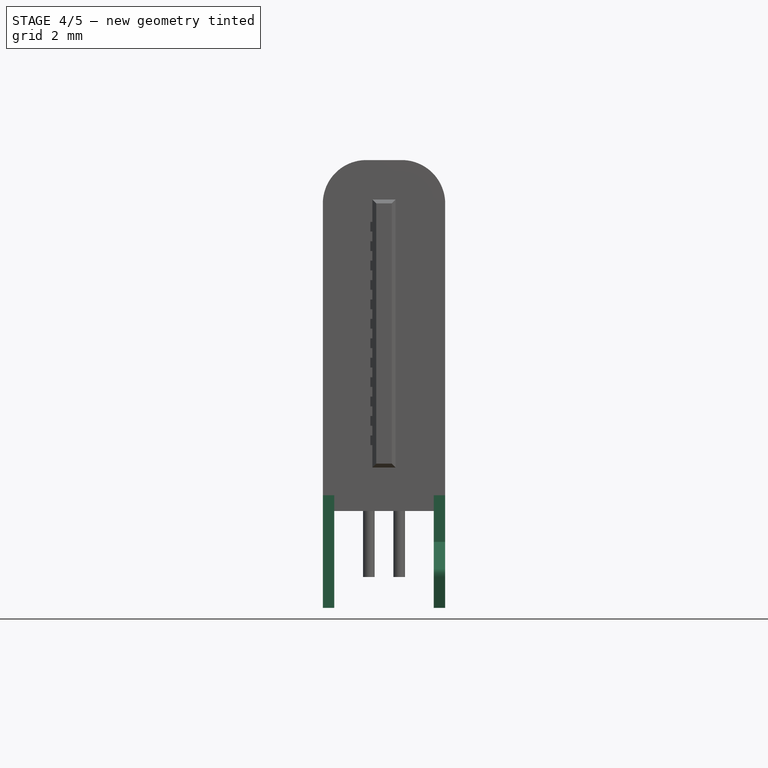
[diagram: stage 4 of 5 — front view after this stage's code; geometry added in this stage tinted green]
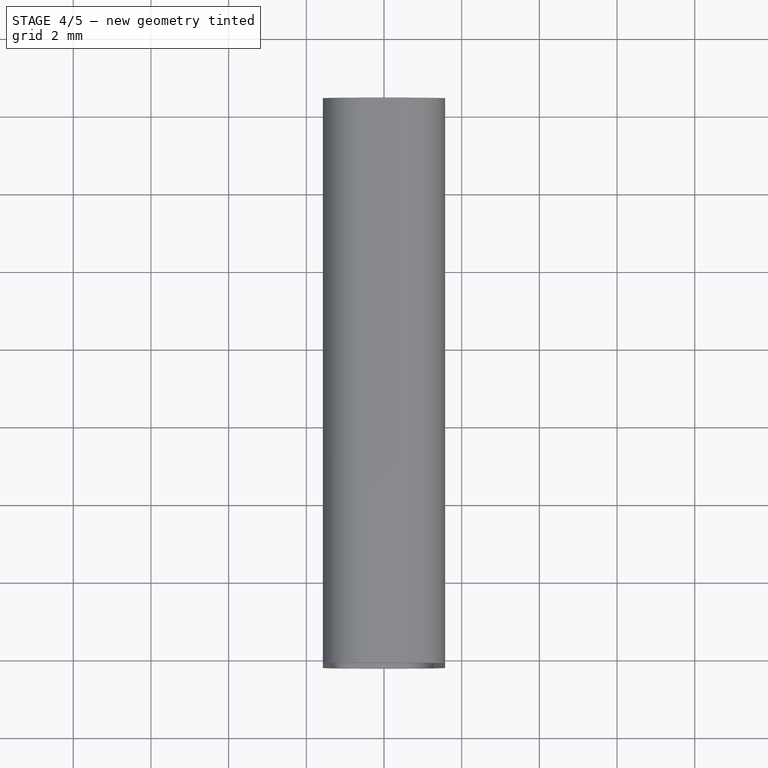
[diagram: stage 4 of 5 — top view after this stage's code; geometry added in this stage tinted green]
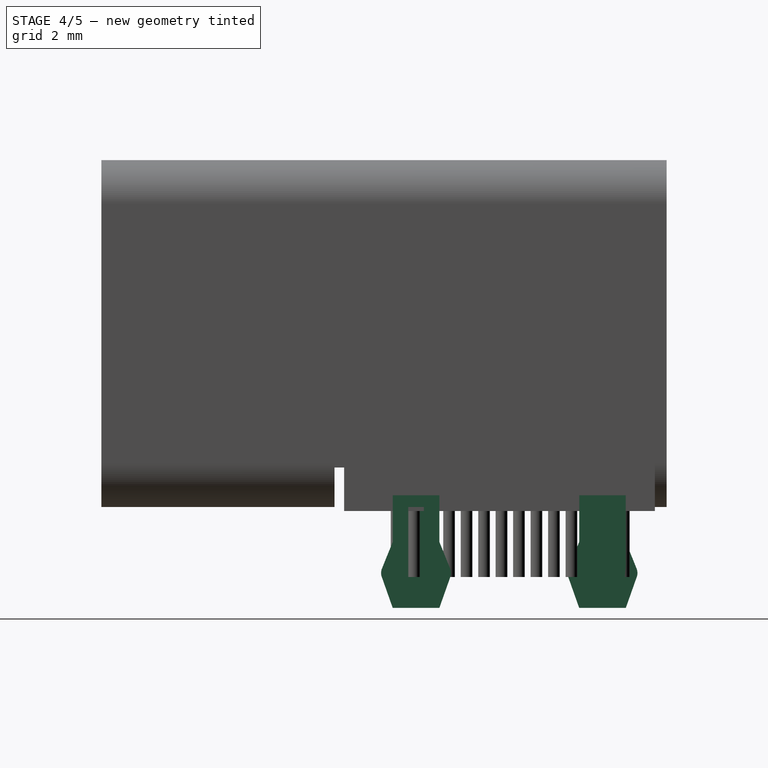
[diagram: stage 4 of 5 — right view after this stage's code; geometry added in this stage tinted green]
FEATURE [Sketcher::SketchObject] Sketch005
  ExternalGeometry = -> [Pad003]
  MapMode = 5
  Placement = pos=(0,0,0.305) rot=(1,0,0;3.14159rad)
  Support = -> [Pad003]
  sketch-geometry (20):
    g0: LineSegment StartX=1.575 StartY=0.75 StartZ=0 EndX=1.28 EndY=0.75 EndZ=0
    g1: LineSegment StartX=1.28 StartY=0.75 StartZ=0 EndX=1.28 EndY=1.95 EndZ=0
    g2: LineSegment StartX=1.28 StartY=1.95 StartZ=0 EndX=1.575 EndY=1.95 EndZ=0
    g3: LineSegment StartX=1.575 StartY=1.95 StartZ=0 EndX=1.575 EndY=0.75 EndZ=0
    g4: LineSegment StartX=1.575 StartY=5.25 StartZ=0 EndX=1.28 EndY=5.25 EndZ=0
    g5: LineSegment StartX=1.28 StartY=5.25 StartZ=0 EndX=1.28 EndY=7.05 EndZ=0
    g6: LineSegment StartX=1.28 StartY=7.05 StartZ=0 EndX=1.575 EndY=7.05 EndZ=0
    g7: LineSegment StartX=1.575 StartY=7.05 StartZ=0 EndX=1.575 EndY=5.25 EndZ=0
    g8: LineSegment StartX=-1.28 StartY=0.45 StartZ=0 EndX=-1.575 EndY=0.45 EndZ=0
    g9: LineSegment StartX=-1.575 StartY=0.45 StartZ=0 EndX=-1.575 EndY=2.25 EndZ=0
    g10: LineSegment StartX=-1.575 StartY=2.25 StartZ=0 EndX=-1.28 EndY=2.25 EndZ=0
    g11: LineSegment StartX=-1.28 StartY=2.25 StartZ=0 EndX=-1.28 EndY=0.45 EndZ=0
    g12: LineSegment StartX=-1.28 StartY=5.55 StartZ=0 EndX=-1.575 EndY=5.55 EndZ=0
    g13: LineSegment StartX=-1.575 StartY=5.55 StartZ=0 EndX=-1.575 EndY=6.75 EndZ=0
    g14: LineSegment StartX=-1.575 StartY=6.75 StartZ=0 EndX=-1.28 EndY=6.75 EndZ=0
    g15: LineSegment StartX=-1.28 StartY=6.75 StartZ=0 EndX=-1.28 EndY=5.55 EndZ=0
    g16: GeomPoint X=1.4275 Y=1.35 Z=0
    g17: GeomPoint X=1.4275 Y=6.15 Z=0
    g18: GeomPoint X=-1.4275 Y=6.15 Z=0
    g19: GeomPoint X=-1.4275 Y=1.35 Z=0
  constraints (52):
    c: Coincident(g0,g1)
    c: Coincident(g1,g2)
    c: Coincident(g2,g3)
    c: Coincident(g3,g0)
    c: Horizontal(g0)
    c: Horizontal(g2)
    c: Vertical(g1)
    c: Vertical(g3)
    c: PointOnObject(g0,g-3)
    c: PointOnObject(g1,g-4)
    c: Coincident(g4,g5)
    c: Coincident(g5,g6)
    c: Coincident(g6,g7)
    c: Coincident(g7,g4)
    c: Horizontal(g4)
    c: Horizontal(g6)
    c: Vertical(g5)
    c: Vertical(g7)
    c: PointOnObject(g4,g-3)
    c: PointOnObject(g5,g-4)
    c: Coincident(g8,g9)
    c: Coincident(g9,g10)
    c: Coincident(g10,g11)
    c: Coincident(g11,g8)
    c: Horizontal(g8)
    c: Horizontal(g10)
    c: Vertical(g9)
    c: Vertical(g11)
    c: PointOnObject(g8,g-5)
    c: PointOnObject(g9,g-6)
    c: Coincident(g12,g13)
    c: Coincident(g13,g14)
    c: Coincident(g14,g15)
    c: Coincident(g15,g12)
    c: Horizontal(g12)
    c: Horizontal(g14)
    c: Vertical(g13)
    c: Vertical(g15)
    c: PointOnObject(g12,g-5)
    c: PointOnObject(g13,g-6)
    c: Equal(g3,g13)
    c: Equal(g7,g9)
    c: DistanceY(g3,g3) = 1.2
    c: DistanceY(g7,g7) = 1.8
    c: Symmetric(g0,g1,g16)
    c: Symmetric(g4,g5,g17)
    c: Symmetric(g8,g9,g19)
    c: Symmetric(g12,g13,g18)
    c: Horizontal(g16,g19)
    c: Horizontal(g17,g18)
    c: DistanceY(g16,g17) = 4.8
    c: DistanceY(g17,g-7) = 8.1
FEATURE [PartDesign::Pad] Pad004
  BaseFeature = -> Pad003
  Length = 2.9
  Length2 = 100
  Placement = pos=(0,0,0) rot=(1,0,0;1.5708rad)
  Profile = -> Sketch005
  Type = 0
  expr: Length = 2.6000000000000001 + 0.29999999999999999
FEATURE [Sketcher::SketchObject] Sketch006
  ExternalGeometry = -> [Pad004]
  MapMode = 5
  Placement = pos=(1.575,0,0) rot=(0.707107,0,0.707107;3.14159rad)
  Support = -> [Pad004]
  sketch-geometry (20):
    g0: LineSegment StartX=0.305 StartY=6.75 StartZ=0 EndX=-0.895 EndY=6.75 EndZ=0
    g1: LineSegment StartX=-0.895 StartY=6.75 StartZ=0 EndX=-1.5825 EndY=7.02811 EndZ=0
    g2: LineSegment StartX=-1.795 StartY=7.03284 StartZ=0 EndX=-2.595 EndY=6.75 EndZ=0
    g3: LineSegment StartX=-2.595 StartY=6.75 StartZ=0 EndX=-2.595 EndY=6.45 EndZ=0
    g4: LineSegment StartX=-1.595 StartY=6.35 StartZ=0 EndX=0.005 EndY=6.35 EndZ=0
    g5: LineSegment StartX=0.005 StartY=6.35 StartZ=0 EndX=0.005 EndY=5.95 EndZ=0
    g6: LineSegment StartX=0.005 StartY=5.95 StartZ=0 EndX=-1.595 EndY=5.95 EndZ=0
    g7: LineSegment StartX=-2.595 StartY=5.85 StartZ=0 EndX=-2.595 EndY=5.55 EndZ=0
    g8: LineSegment StartX=-2.595 StartY=5.55 StartZ=0 EndX=-1.795 EndY=5.26716 EndZ=0
    g9: LineSegment StartX=-1.5825 StartY=5.27189 StartZ=0 EndX=-0.895 EndY=5.55 EndZ=0
    g10: LineSegment StartX=-0.895 StartY=5.55 StartZ=0 EndX=0.305 EndY=5.55 EndZ=0
    g11: LineSegment StartX=0.305 StartY=5.55 StartZ=0 EndX=0.305 EndY=4.85 EndZ=0
    g12: LineSegment StartX=0.305 StartY=4.85 StartZ=0 EndX=-2.995 EndY=4.85 EndZ=0
    g13: LineSegment StartX=-2.995 StartY=4.85 StartZ=0 EndX=-2.995 EndY=7.45 EndZ=0
    g14: LineSegment StartX=0.305 StartY=6.75 StartZ=0 EndX=0.305 EndY=7.45 EndZ=0
    g15: LineSegment StartX=0.305 StartY=7.45 StartZ=0 EndX=-2.995 EndY=7.45 EndZ=0
    g16: ArcOfCircle CenterX=-1.695 CenterY=6.75 CenterZ=0 NormalX=0 NormalY=0 NormalZ=1 AngleXU=0 Radius=0.3 StartAngle=1.1864 EndAngle=1.91063
    g17: ArcOfCircle CenterX=-1.695 CenterY=5.55 CenterZ=0 NormalX=0 NormalY=0 NormalZ=1 AngleXU=0 Radius=0.3 StartAngle=4.37255 EndAngle=5.09679
    g18: LineSegment StartX=-2.595 StartY=6.45 StartZ=0 EndX=-1.595 EndY=6.35 EndZ=0
    g19: LineSegment StartX=-2.595 StartY=5.85 StartZ=0 EndX=-1.595 EndY=5.95 EndZ=0
  constraints (58):
    c: PointOnObject(g0,g-6)
    c: Horizontal(g0)
    c: Coincident(g0,g1)
    c: PointOnObject(g2,g-5)
    c: Coincident(g2,g3)
    c: Vertical(g3)
    c: Horizontal(g4)
    c: Coincident(g4,g5)
    c: Vertical(g5)
    c: Coincident(g5,g6)
    c: Horizontal(g6)
    c: PointOnObject(g7,g-5)
    c: Coincident(g7,g8)
    c: Coincident(g9,g10)
    c: PointOnObject(g10,g-6)
    c: Horizontal(g10)
    c: Coincident(g11,g10)
    c: Vertical(g11)
    c: Coincident(g11,g12)
    c: Horizontal(g12)
    c: Coincident(g12,g13)
    c: Vertical(g13)
    c: Coincident(g0,g14)
    c: Vertical(g14)
    c: Coincident(g14,g15)
    c: Horizontal(g15)
    c: Coincident(g15,g13)
    c: Equal(g3,g7)
    c: Tangent(g1,g16) = -1.5708
    c: Tangent(g2,g16) = -1.5708
    c: Tangent(g8,g17) = -1.5708
    c: Tangent(g9,g17) = -1.5708
    c: Tangent(g16,g-3)
    c: Tangent(g17,g-4)
    c: Equal(g16,g17)
    c: Vertical(g17,g16)
    c: Vertical(g0,g9)
    c: DistanceY(g13,g13) = 2.6
    c: Equal(g14,g11)
    c: DistanceY(g5,g5) = 0.4
    c: Distance(g4,g0) = 0.4
    c: Distance(g5,g10) = 0.4
    c: Vertical(g1,g9)
    c: DistanceX(g4,g0) = 0.3
    c: DistanceX(g12,g12) = 3.3
    c: Radius(g16) = 0.3
    c: DistanceX(g10,g10) = 1.2
    c: Distance(g16,g14) = 2
    c: Coincident(g4,g18)
    c: Coincident(g3,g18)
    c: Coincident(g6,g19)
    c: Coincident(g7,g19)
    c: Vertical(g4,g6)
    c: PointOnObject(g7,g-5)
    c: Equal(g19,g18)
    c: DistanceY(g7,g3) = 0.6
    c: DistanceY(g3,g3) = 0.3
    c: DistanceX(g7,g6) = 1
FEATURE [PartDesign::Pocket] Pocket001
  BaseFeature = -> Pad004
  Length = 5
  Length2 = 100
  Placement = pos=(0,0,0) rot=(1,0,0;1.5708rad)
  Profile = -> Sketch006
  Type = 2
FEATURE [Sketcher::SketchObject] Sketch007
  ExternalGeometry = -> [Pocket001]
  MapMode = 5
  Placement = pos=(-1.575,0,0) rot=(0.707107,0,-0.707107;3.14159rad)
  Support = -> [Pocket001]
  sketch-geometry (20):
    g0: LineSegment StartX=-0.305 StartY=1.95 StartZ=0 EndX=0.895 EndY=1.95 EndZ=0
    g1: LineSegment StartX=0.895 StartY=1.95 StartZ=0 EndX=1.5825 EndY=2.22811 EndZ=0
    g2: LineSegment StartX=1.795 StartY=2.23284 StartZ=0 EndX=2.595 EndY=1.95 EndZ=0
    g3: LineSegment StartX=2.595 StartY=1.95 StartZ=0 EndX=2.595 EndY=1.65 EndZ=0
    g4: LineSegment StartX=2.595 StartY=1.65 StartZ=0 EndX=1.595 EndY=1.55 EndZ=0
    g5: LineSegment StartX=1.595 StartY=1.55 StartZ=0 EndX=-0.005 EndY=1.55 EndZ=0
    g6: LineSegment StartX=-0.005 StartY=1.55 StartZ=0 EndX=-0.005 EndY=1.15 EndZ=0
    g7: LineSegment StartX=-0.005 StartY=1.15 StartZ=0 EndX=1.595 EndY=1.15 EndZ=0
    g8: LineSegment StartX=1.595 StartY=1.15 StartZ=0 EndX=2.595 EndY=1.05 EndZ=0
    g9: LineSegment StartX=2.595 StartY=1.05 StartZ=0 EndX=2.595 EndY=0.75 EndZ=0
    g10: LineSegment StartX=2.595 StartY=0.75 StartZ=0 EndX=1.795 EndY=0.467157 EndZ=0
    g11: LineSegment StartX=1.5825 StartY=0.471893 StartZ=0 EndX=0.895 EndY=0.75 EndZ=0
    g12: LineSegment StartX=0.895 StartY=0.75 StartZ=0 EndX=-0.305 EndY=0.75 EndZ=0
    g13: LineSegment StartX=-0.305 StartY=0.75 StartZ=0 EndX=-0.305 EndY=0.05 EndZ=0
    g14: LineSegment StartX=-0.305 StartY=0.05 StartZ=0 EndX=2.995 EndY=0.05 EndZ=0
    g15: LineSegment StartX=2.995 StartY=0.05 StartZ=0 EndX=2.995 EndY=2.65 EndZ=0
    g16: LineSegment StartX=2.995 StartY=2.65 StartZ=0 EndX=-0.305 EndY=2.65 EndZ=0
    g17: LineSegment StartX=-0.305 StartY=2.65 StartZ=0 EndX=-0.305 EndY=1.95 EndZ=0
    g18: ArcOfCircle CenterX=1.695 CenterY=1.95 CenterZ=0 NormalX=0 NormalY=0 NormalZ=1 AngleXU=0 Radius=0.3 StartAngle=1.23096 EndAngle=1.95519
    g19: ArcOfCircle CenterX=1.695 CenterY=0.75 CenterZ=0 NormalX=0 NormalY=0 NormalZ=1 AngleXU=0 Radius=0.3 StartAngle=4.32799 EndAngle=5.05223
  constraints (58):
    c: PointOnObject(g0,g-3)
    c: Horizontal(g0)
    c: Coincident(g0,g1)
    c: PointOnObject(g2,g-6)
    c: Coincident(g2,g3)
    c: PointOnObject(g3,g-6)
    c: Coincident(g3,g4)
    c: Coincident(g4,g5)
    c: Horizontal(g5)
    c: Coincident(g5,g6)
    c: Vertical(g6)
    c: Coincident(g6,g7)
    c: Horizontal(g7)
    c: Coincident(g7,g8)
    c: PointOnObject(g8,g-6)
    c: Coincident(g8,g9)
    c: Vertical(g9)
    c: Coincident(g9,g10)
    c: Coincident(g11,g12)
    c: PointOnObject(g12,g-3)
    c: Horizontal(g12)
    c: Coincident(g12,g13)
    c: Vertical(g13)
    c: Coincident(g13,g14)
    c: Horizontal(g14)
    c: Coincident(g14,g15)
    c: Vertical(g15)
    c: Coincident(g15,g16)
    c: Horizontal(g16)
    c: Coincident(g16,g17)
    c: Coincident(g17,g0)
    c: Vertical(g17)
    c: Vertical(g0,g11)
    c: Tangent(g1,g18) = 1.5708
    c: Tangent(g2,g18) = 1.5708
    c: Tangent(g10,g19) = 1.5708
    c: Tangent(g11,g19) = 1.5708
    c: Tangent(g18,g-4)
    c: Tangent(g19,g-5)
    c: Vertical(g19,g18)
    c: Equal(g18,g19)
    c: Vertical(g1,g11)
    c: Equal(g3,g9)
    c: Equal(g4,g8)
    c: Vertical(g4,g7)
    c: Radius(g18) = 0.3
    c: DistanceY(g15,g15) = 2.6
    c: DistanceX(g16,g16) = 3.3
    c: Distance(g3) = 0.3
    c: Distance(g18,g17) = 2
    c: Distance(g3,g8) = 0.6
    c: Distance(g6) = 0.4
    c: DistanceY(g5,g0) = 0.4
    c: DistanceY(g12,g6) = 0.4
    c: DistanceX(g0,g5) = 0.3
    c: Distance(g12) = 1.2
    c: DistanceX(g7,g8) = 1
    c: Equal(g17,g13)
FEATURE [PartDesign::Pocket] Pocket002
  BaseFeature = -> Pocket001
  Length = 5
  Length2 = 100
  Placement = pos=(0,0,0) rot=(1,0,0;1.5708rad)
  Profile = -> Sketch007
  Type = 2
FEATURE [Sketcher::SketchObject] Sketch008
  ExternalGeometry = -> [Pocket002]
  MapMode = 5
  Placement = pos=(1.575,0,0) rot=(0.707107,0,0.707107;3.14159rad)
  Support = -> [Pocket002]
  sketch-geometry (8):
    g0: LineSegment StartX=-2.595 StartY=1.85 StartZ=0 EndX=-1.495 EndY=1.95 EndZ=0
    g1: LineSegment StartX=-1.495 StartY=1.95 StartZ=0 EndX=-1.495 EndY=2.35 EndZ=0
    g2: LineSegment StartX=-1.495 StartY=2.35 StartZ=0 EndX=-2.995 EndY=2.35 EndZ=0
    g3: LineSegment StartX=-2.995 StartY=2.35 StartZ=0 EndX=-2.995 EndY=0.35 EndZ=0
    g4: LineSegment StartX=-2.995 StartY=0.35 StartZ=0 EndX=-1.495 EndY=0.35 EndZ=0
    g5: LineSegment StartX=-1.495 StartY=0.35 StartZ=0 EndX=-1.495 EndY=0.75 EndZ=0
    g6: LineSegment StartX=-1.495 StartY=0.75 StartZ=0 EndX=-2.595 EndY=0.85 EndZ=0
    g7: LineSegment StartX=-2.595 StartY=0.85 StartZ=0 EndX=-2.595 EndY=1.85 EndZ=0
  constraints (24):
    c: PointOnObject(g0,g-4)
    c: PointOnObject(g0,g-3)
    c: Coincident(g0,g1)
    c: Vertical(g1)
    c: Coincident(g1,g2)
    c: Horizontal(g2)
    c: Coincident(g2,g3)
    c: Vertical(g3)
    c: Coincident(g3,g4)
    c: Horizontal(g4)
    c: Coincident(g4,g5)
    c: PointOnObject(g5,g-5)
    c: Vertical(g5)
    c: Coincident(g5,g6)
    c: PointOnObject(g6,g-4)
    c: Coincident(g6,g7)
    c: Coincident(g7,g0)
    c: Vertical(g0,g5)
    c: Equal(g1,g5)
    c: Distance(g5,g-5) = 1.8
    c: DistanceX(g2,g2) = 1.5
    c: Distance(g3) = 2
    c: Distance(g7) = 1
    c: Equal(g0,g6)
FEATURE [PartDesign::Pocket] Pocket003
  BaseFeature = -> Pocket002
  Length = 5
  Length2 = 100
  Placement = pos=(0,0,0) rot=(1,0,0;1.5708rad)
  Profile = -> Sketch008
  Type = 2
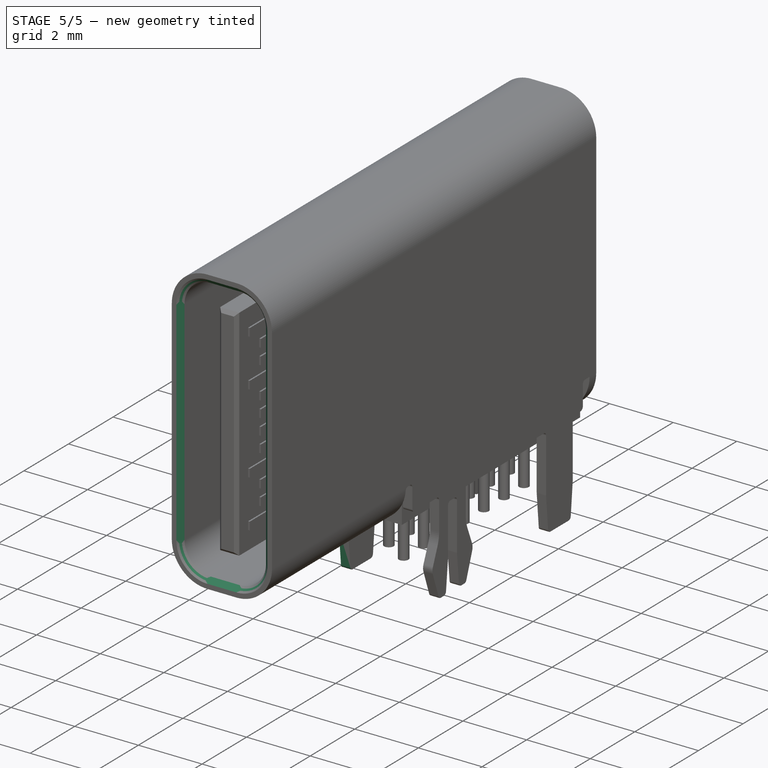
[diagram: stage 5 of 5 — iso view after this stage's code; geometry added in this stage tinted green]
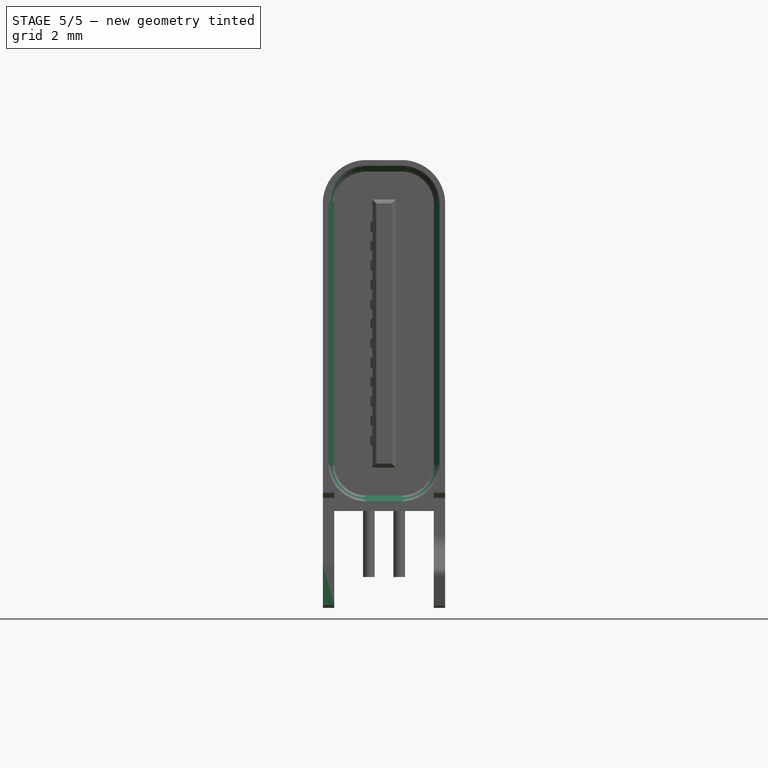
[diagram: stage 5 of 5 — front view after this stage's code; geometry added in this stage tinted green]
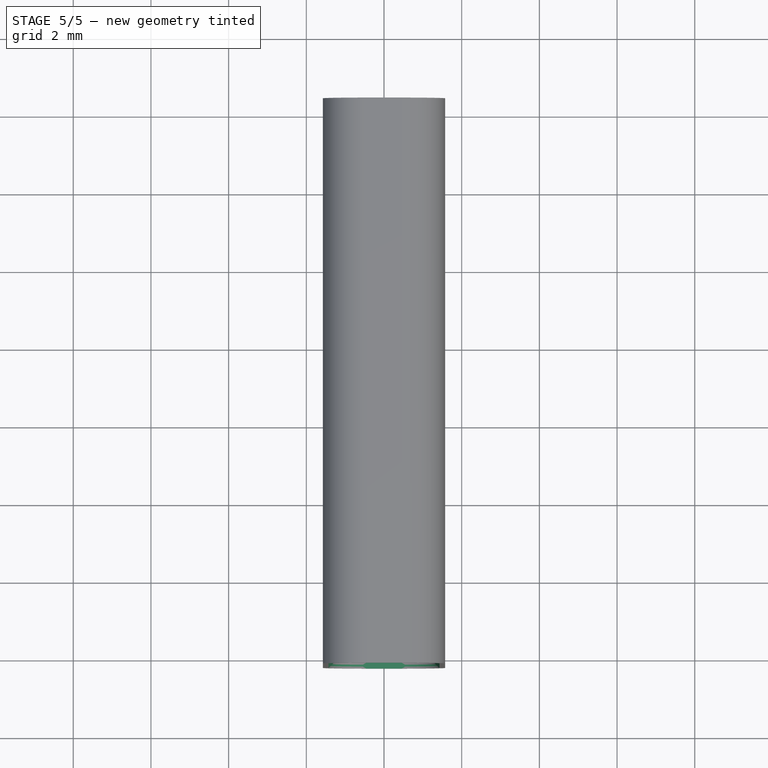
[diagram: stage 5 of 5 — top view after this stage's code; geometry added in this stage tinted green]
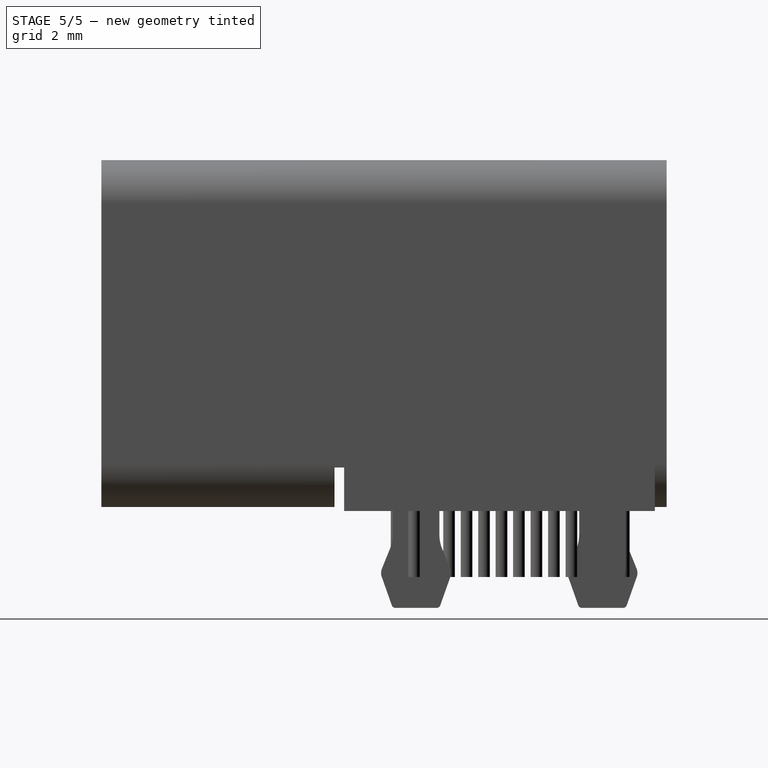
[diagram: stage 5 of 5 — right view after this stage's code; geometry added in this stage tinted green]
FEATURE [Sketcher::SketchObject] Sketch009
  ExternalGeometry = -> [Pocket003]
  MapMode = 5
  Placement = pos=(-1.575,0,0) rot=(0.707107,0,-0.707107;3.14159rad)
  Support = -> [Pocket003]
  sketch-geometry (8):
    g0: LineSegment StartX=2.595 StartY=6.65 StartZ=0 EndX=1.495 EndY=6.75 EndZ=0
    g1: LineSegment StartX=1.495 StartY=6.75 StartZ=0 EndX=1.495 EndY=7.15 EndZ=0
    g2: LineSegment StartX=1.495 StartY=7.15 StartZ=0 EndX=2.995 EndY=7.15 EndZ=0
    g3: LineSegment StartX=2.995 StartY=7.15 StartZ=0 EndX=2.995 EndY=5.15 EndZ=0
    g4: LineSegment StartX=2.995 StartY=5.15 StartZ=0 EndX=1.495 EndY=5.15 EndZ=0
    g5: LineSegment StartX=1.495 StartY=5.15 StartZ=0 EndX=1.495 EndY=5.55 EndZ=0
    g6: LineSegment StartX=1.495 StartY=5.55 StartZ=0 EndX=2.595 EndY=5.65 EndZ=0
    g7: LineSegment StartX=2.595 StartY=5.65 StartZ=0 EndX=2.595 EndY=6.65 EndZ=0
  constraints (24):
    c: PointOnObject(g0,g-4)
    c: PointOnObject(g0,g-3)
    c: Coincident(g0,g1)
    c: Vertical(g1)
    c: Coincident(g1,g2)
    c: Horizontal(g2)
    c: Coincident(g2,g3)
    c: Vertical(g3)
    c: Coincident(g3,g4)
    c: Horizontal(g4)
    c: Coincident(g4,g5)
    c: PointOnObject(g5,g-5)
    c: Vertical(g5)
    c: Coincident(g5,g6)
    c: PointOnObject(g6,g-4)
    c: Coincident(g6,g7)
    c: Coincident(g7,g0)
    c: Vertical(g5,g0)
    c: Equal(g1,g5)
    c: Equal(g0,g6)
    c: Distance(g3) = 2
    c: Distance(g2) = 1.5
    c: Distance(g7) = 1
    c: Distance(g5,g-5) = 1.8
FEATURE [PartDesign::Pocket] Pocket004
  BaseFeature = -> Pocket003
  Length = 5
  Length2 = 100
  Placement = pos=(0,0,0) rot=(1,0,0;1.5708rad)
  Profile = -> Sketch009
  Type = 2
FEATURE [PartDesign::Fillet] Fillet
  Base = -> Pocket004 [Edge177,Edge93,Edge173,Edge204,Edge284,Edge202,Edge283,Edge178,Edge174,Edge106,Edge65,Edge78,Edge130,Edge132,Edge260,Edge158,Edge261,Edge156,Edge133,Edge129,Edge67,Edge66]
  BaseFeature = -> Pocket004
  Placement = pos=(0,0,0) rot=(1,0,0;1.5708rad)
  Radius = 0.1
FEATURE [PartDesign::Fillet] Fillet001
  Base = -> Fillet [Edge230,Edge244,Edge272,Edge354,Edge361]
  BaseFeature = -> Fillet
  Placement = pos=(0,0,0) rot=(1,0,0;1.5708rad)
  Radius = 1
FEATURE [PartDesign::Fillet] Fillet002
  Base = -> Fillet001 [Edge58,Edge63,Edge89,Edge85,Edge387,Edge388,Edge177,Edge175,Edge382,Edge384,Edge371,Edge369]
  BaseFeature = -> Fillet001
  Placement = pos=(0,0,0) rot=(1,0,0;1.5708rad)
  Radius = 0.1
FEATURE [PartDesign::Chamfer] Chamfer
  Base = -> Fillet002 [Edge171]
  BaseFeature = -> Fillet002
  Placement = pos=(0,0,0) rot=(1,0,0;1.5708rad)
  Size = 0.15
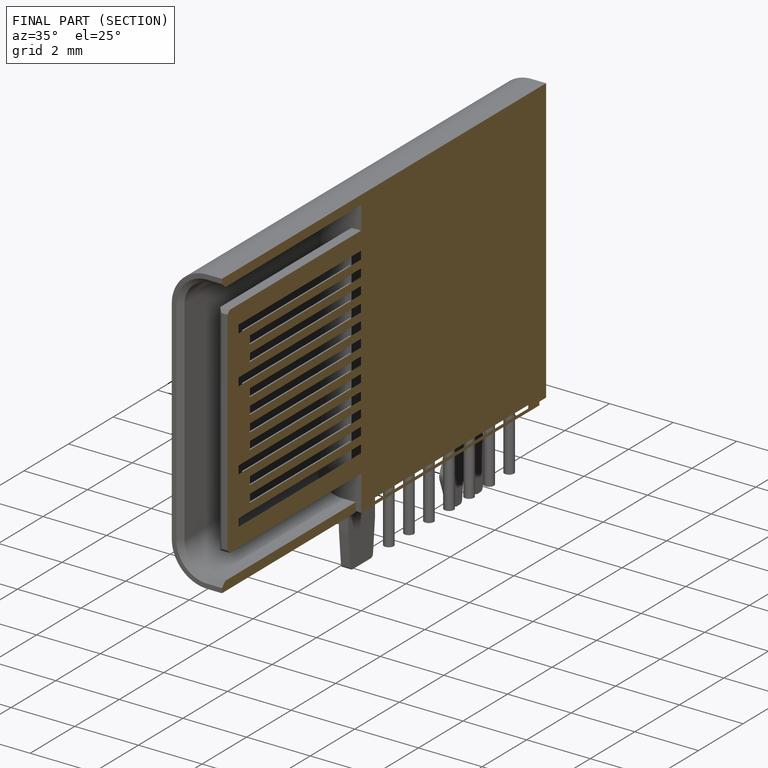
[diagram: finished part — half-section view (interior)]
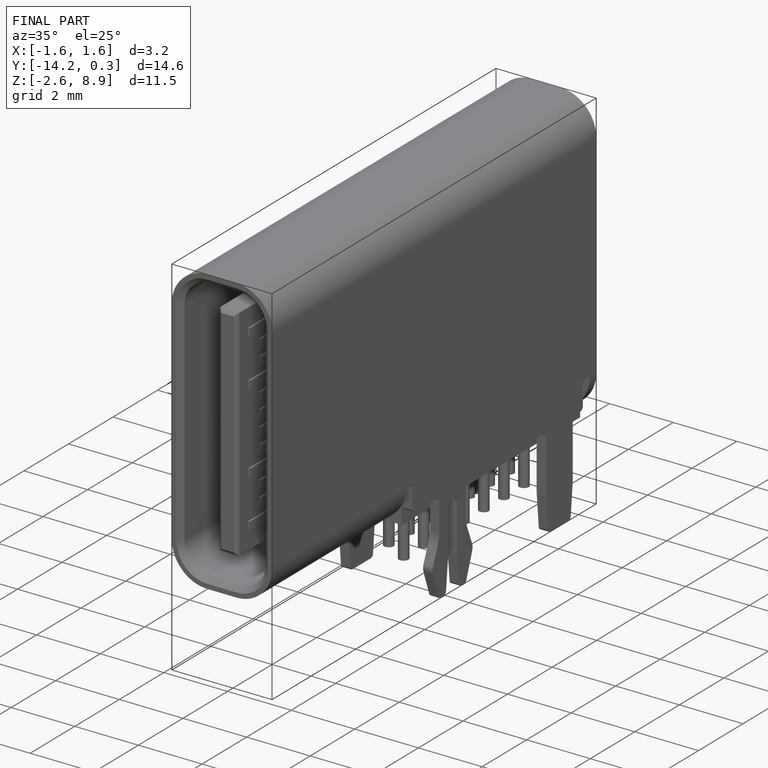
[diagram: finished part — iso view with bounding-box wireframe]
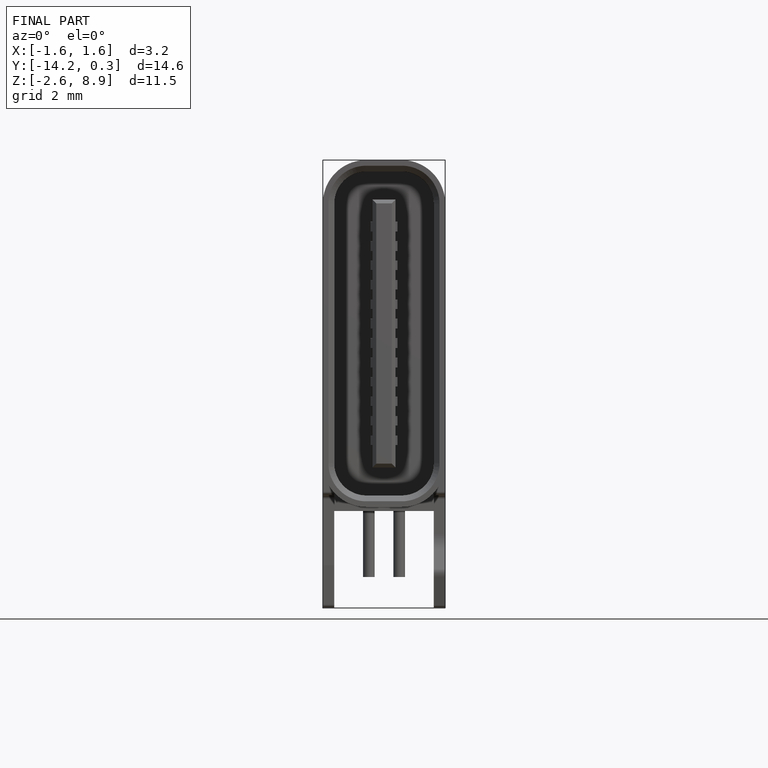
[diagram: finished part — front view with bounding-box wireframe]
